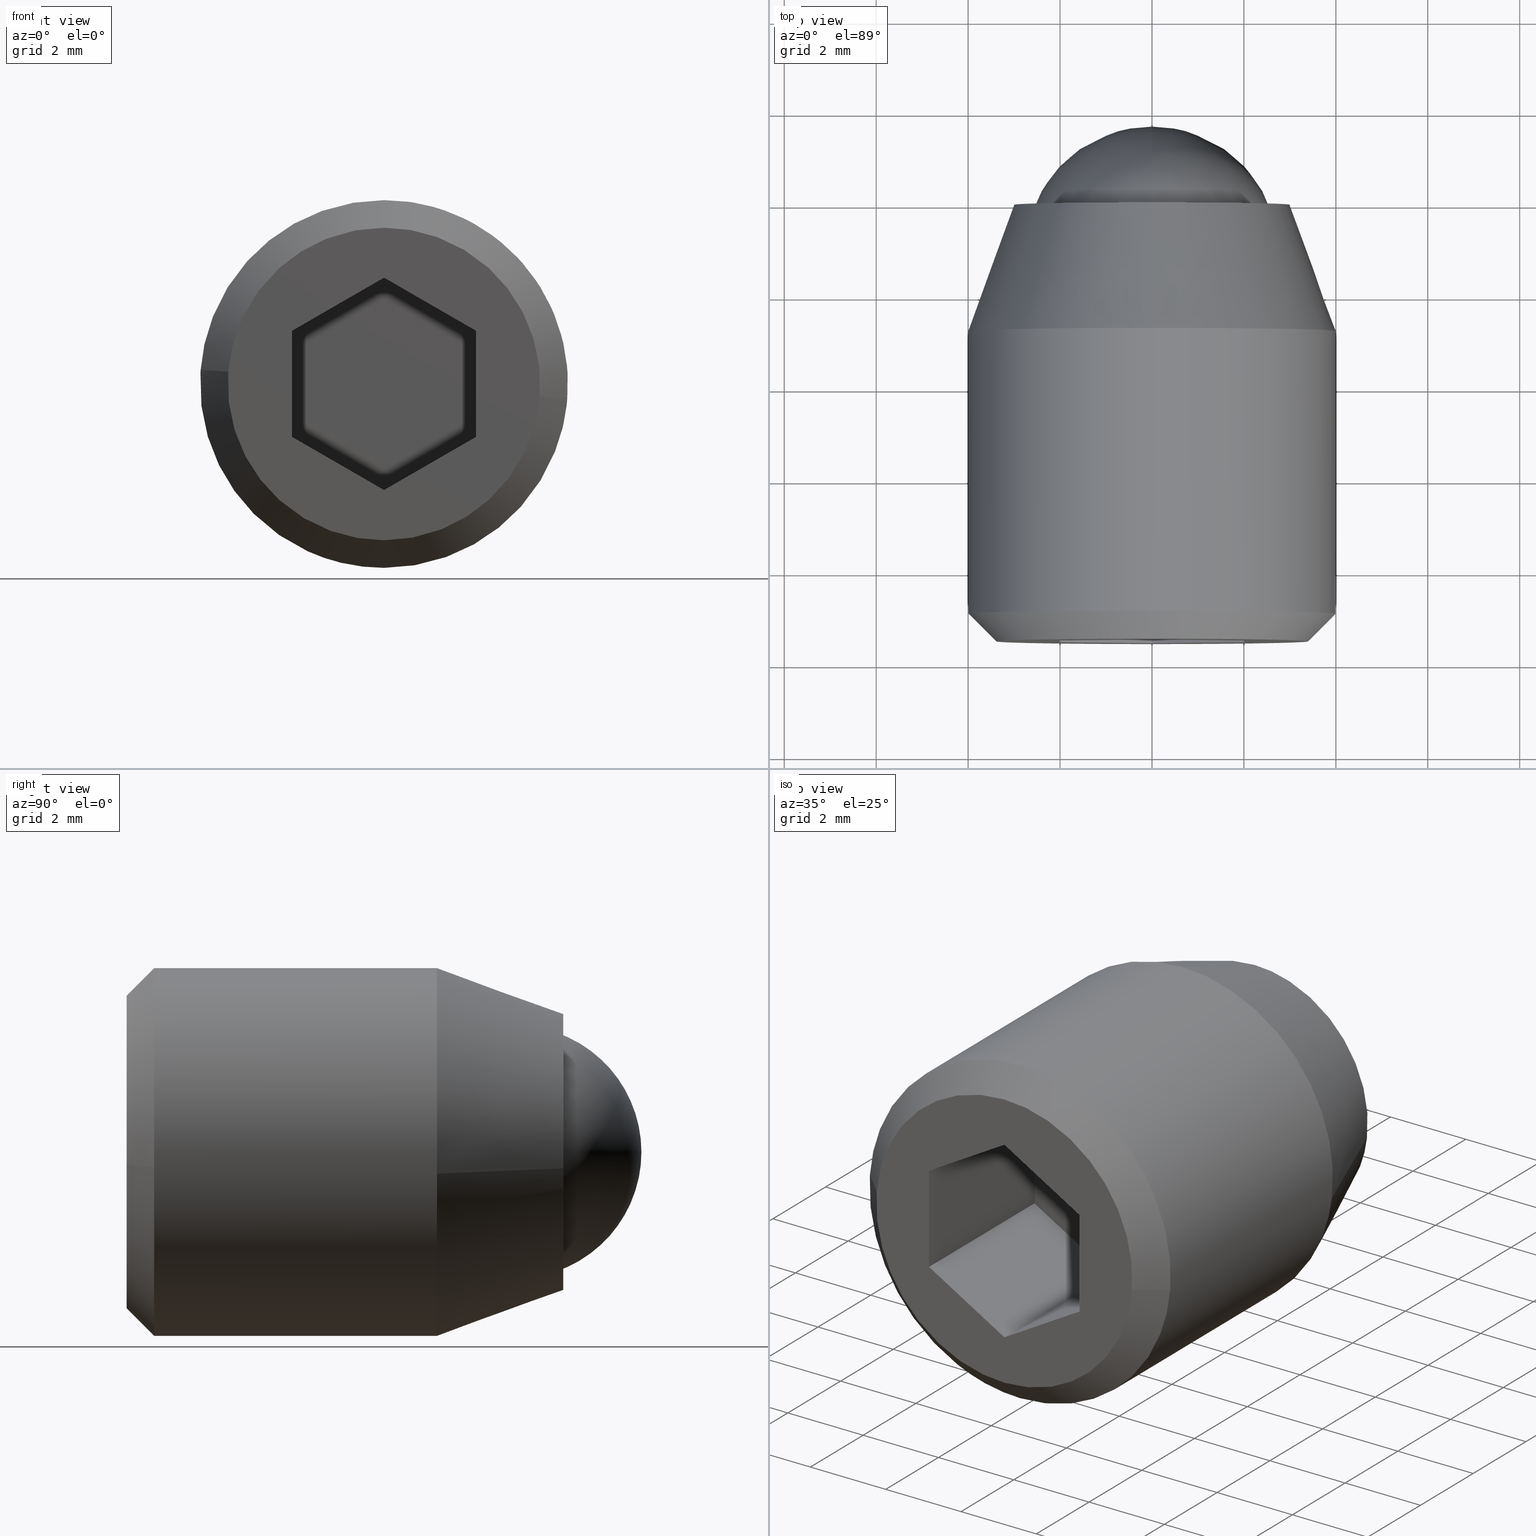
[diagram: canonical four-view strip — front | top / right | iso, engineering-drawing reading convention]
A machine part, canonical four-view strip (front | top / right | iso — engineering-drawing reading convention). The complete STEP part file that produces these views, byte-faithful:
ISO-10303-21;
HEADER;
/****************************************************************
 * Generated by software with PDE/Lib inside                    *
 * PDElib Version 4.4.1-0003, patched  Thursday August 19 11:58 *
 * International Technegroup Inc. (www.iti-oh.com)              *
 ****************************************************************/
FILE_DESCRIPTION((''),'2;1');
FILE_NAME('','2005-07-15T11:42:59',(''),(''),'','CADfix','');
FILE_SCHEMA(('AUTOMOTIVE_DESIGN'));
ENDSEC;
DATA;
#5=APPLICATION_CONTEXT('automotive design');
#6=APPLICATION_PROTOCOL_DEFINITION('Draft International Standard','automotive_design',1998,#5);
#7=PRODUCT_CONTEXT('None',#5,'mechanical');
#8=PRODUCT('body','','None',(#7));
#9=PRODUCT_RELATED_PRODUCT_CATEGORY('part','description',(#8));
#10=PRODUCT_DEFINITION_FORMATION('None','None',#8);
#11=PRODUCT_DEFINITION_CONTEXT('part definition',#5,'design');
#12=PRODUCT_DEFINITION('None','None',#10,#11);
#18=(NAMED_UNIT(*)PLANE_ANGLE_UNIT()SI_UNIT($,.RADIAN.));
#19=DIMENSIONAL_EXPONENTS(0.0,0.0,0.0,0.0,0.0,0.0,0.0);
#20=PLANE_ANGLE_MEASURE_WITH_UNIT(PLANE_ANGLE_MEASURE(0.017453292500000),#18);
#24=(CONVERSION_BASED_UNIT('DEGREE',#20)NAMED_UNIT(#19)PLANE_ANGLE_UNIT());
#28=(NAMED_UNIT(*)SI_UNIT($,.STERADIAN.)SOLID_ANGLE_UNIT());
#32=(LENGTH_UNIT()NAMED_UNIT(*)SI_UNIT(.MILLI.,.METRE.));
#34=UNCERTAINTY_MEASURE_WITH_UNIT(LENGTH_MEASURE(0.001000000000000),#32,'DISTANCE_ACCURACY_VALUE','');
#36=(GEOMETRIC_REPRESENTATION_CONTEXT(3)GLOBAL_UNCERTAINTY_ASSIGNED_CONTEXT((#34))GLOBAL_UNIT_ASSIGNED_CONTEXT((#24,#28,#32))REPRESENTATION_CONTEXT('None','None'));
#37=AXIS2_PLACEMENT_3D('',#38,#39,#40);
#38=CARTESIAN_POINT('',(0.0,0.0,0.0));
#39=DIRECTION('',(0.0,0.0,1.0));
#40=DIRECTION('',(1.0,0.0,0.0));
#41=ADVANCED_BREP_SHAPE_REPRESENTATION('',(#37,#945,#1156),#36);
#42=PRODUCT_DEFINITION_SHAPE('','',#12);
#43=SHAPE_DEFINITION_REPRESENTATION(#42,#41);
#44=CARTESIAN_POINT('',(-2.730776197500084,0.125000000000000,0.324594145306086));
#45=CARTESIAN_POINT('',(-2.740065942483665,0.125000000000000,0.246440503754439));
#46=CARTESIAN_POINT('',(-2.744870695660134,0.125000000000000,0.167883483720857));
#47=CARTESIAN_POINT('',(-2.912754179380990,0.125000000000000,-2.576987211939278));
#48=CARTESIAN_POINT('',(-0.167883483720857,0.125000000000000,-2.744870695660134));
#49=CARTESIAN_POINT('',(2.576987211939278,0.125000000000000,-2.912754179380990));
#50=CARTESIAN_POINT('',(2.744870695660134,0.125000000000000,-0.167883483720857));
#51=CARTESIAN_POINT('',(-2.730776197500084,-5.128125000000002,0.324594145306086));
#52=CARTESIAN_POINT('',(-2.740065942483665,-5.128125000000001,0.246440503754439));
#53=CARTESIAN_POINT('',(-2.744870695660134,-5.128125000000001,0.167883483720857));
#54=CARTESIAN_POINT('',(-2.912754179380990,-5.128125000000001,-2.576987211939278));
#55=CARTESIAN_POINT('',(-0.167883483720857,-5.128125000000001,-2.744870695660134));
#56=CARTESIAN_POINT('',(2.576987211939278,-5.128125000000001,-2.912754179380990));
#57=CARTESIAN_POINT('',(2.744870695660134,-5.128125000000001,-0.167883483720857));
#65=(BOUNDED_SURFACE()B_SPLINE_SURFACE(2,1,((#44,#51),(#45,#52),(#46,#53),(#47,#54),(#48,#55),(#49,#56),(#50,#57)),.UNSPECIFIED.,.F.,.F.,.U.)B_SPLINE_SURFACE_WITH_KNOTS((3,2,2,3),(2,2),(0.0,0.182253967444162,4.738603153548208,9.294952339652255),(0.0,5.253125000000002),.UNSPECIFIED.)GEOMETRIC_REPRESENTATION_ITEM()RATIONAL_B_SPLINE_SURFACE(((0.977505800795127,0.977505800795127),(0.988284271247462,0.988284271247462),(1.0,1.0),(0.707106781186548,0.707106781186548),(1.0,1.0),(0.707106781186548,0.707106781186548),(1.0,1.0)))REPRESENTATION_ITEM('')SURFACE());
#66=CARTESIAN_POINT('',(-2.730776338994065,-4.999999999999998,0.324592954927757));
#67=VERTEX_POINT('',#66);
#68=CARTESIAN_POINT('',(0.0,-5.0,-2.750000000000000));
#69=VERTEX_POINT('',#68);
#70=CARTESIAN_POINT('',(-2.730776338994065,-4.999999999999999,0.324592954927757));
#71=CARTESIAN_POINT('',(-2.750000000000000,-5.0,0.162865727561364));
#72=CARTESIAN_POINT('',(-2.750000000000000,-5.0,0.0));
#73=CARTESIAN_POINT('',(-2.750000000000000,-5.000000000000001,-2.750000000000000));
#74=CARTESIAN_POINT('',(0.0,-5.0,-2.750000000000000));
#82=(BOUNDED_CURVE()B_SPLINE_CURVE(2,(#70,#71,#72,#73,#74),.UNSPECIFIED.,.F.,.U.)B_SPLINE_CURVE_WITH_KNOTS((3,2,3),(0.229562547186204,0.250000000000000,0.500000000000000),.UNSPECIFIED.)CURVE()GEOMETRIC_REPRESENTATION_ITEM()RATIONAL_B_SPLINE_CURVE((0.956026898585249,0.976056034644077,1.0,0.707106781186548,1.0))REPRESENTATION_ITEM(''));
#83=EDGE_CURVE('',#67,#69,#82,.T.);
#84=ORIENTED_EDGE('',*,*,#83,.T.);
#85=CARTESIAN_POINT('',(2.744870905177998,-4.999999999999996,-0.167880058063904));
#86=VERTEX_POINT('',#85);
#87=CARTESIAN_POINT('',(0.0,-5.0,-2.750000000000000));
#88=CARTESIAN_POINT('',(2.586944918583669,-5.0,-2.750000000000001));
#89=CARTESIAN_POINT('',(2.744870905177998,-4.999999999999996,-0.167880058063904));
#97=(BOUNDED_CURVE()B_SPLINE_CURVE(2,(#87,#88,#89),.UNSPECIFIED.,.F.,.U.)B_SPLINE_CURVE_WITH_KNOTS((3,3),(0.500000000000000,0.739333177584063),.UNSPECIFIED.)CURVE()GEOMETRIC_REPRESENTATION_ITEM()RATIONAL_B_SPLINE_CURVE((1.0,0.719603740994209,0.976072503192737))REPRESENTATION_ITEM(''));
#98=EDGE_CURVE('',#69,#86,#97,.T.);
#99=ORIENTED_EDGE('',*,*,#98,.T.);
#100=CARTESIAN_POINT('',(2.744870902593660,-1.110223E-016,-0.167880100319174));
#101=VERTEX_POINT('',#100);
#102=CARTESIAN_POINT('',(2.744870902593660,-1.110223E-016,-0.167880100319174));
#103=CARTESIAN_POINT('',(2.744870905177998,-4.999999999999996,-0.167880058063904));
#104=QUASI_UNIFORM_CURVE('',1,(#102,#103),.UNSPECIFIED.,.F.,.U.);
#105=EDGE_CURVE('',#101,#86,#104,.T.);
#106=ORIENTED_EDGE('',*,*,#105,.F.);
#107=CARTESIAN_POINT('',(0.0,0.0,-2.750000000000000));
#108=VERTEX_POINT('',#107);
#109=CARTESIAN_POINT('',(0.0,0.0,-2.750000000000000));
#110=CARTESIAN_POINT('',(2.586944878685141,0.0,-2.750000000000000));
#111=CARTESIAN_POINT('',(2.744870902593660,-1.110223E-016,-0.167880100319173));
#119=(BOUNDED_CURVE()B_SPLINE_CURVE(2,(#109,#110,#111),.UNSPECIFIED.,.F.,.U.)B_SPLINE_CURVE_WITH_KNOTS((3,3),(0.500000000000000,0.739333174927831),.UNSPECIFIED.)CURVE()GEOMETRIC_REPRESENTATION_ITEM()RATIONAL_B_SPLINE_CURVE((1.0,0.719603744106178,0.976072497499916))REPRESENTATION_ITEM(''));
#120=EDGE_CURVE('',#108,#101,#119,.T.);
#121=ORIENTED_EDGE('',*,*,#120,.F.);
#122=CARTESIAN_POINT('',(-2.730776337250088,-1.135771E-016,0.324592969599759));
#123=VERTEX_POINT('',#122);
#124=CARTESIAN_POINT('',(-2.730776337250088,-1.135771E-016,0.324592969599759));
#125=CARTESIAN_POINT('',(-2.750000000000000,0.0,0.162865734974919));
#126=CARTESIAN_POINT('',(-2.750000000000000,0.0,0.0));
#127=CARTESIAN_POINT('',(-2.750000000000000,0.0,-2.750000000000000));
#128=CARTESIAN_POINT('',(0.0,0.0,-2.750000000000000));
#136=(BOUNDED_CURVE()B_SPLINE_CURVE(2,(#124,#125,#126,#127,#128),.UNSPECIFIED.,.F.,.U.)B_SPLINE_CURVE_WITH_KNOTS((3,2,3),(0.229562546278178,0.250000000000000,0.500000000000000),.UNSPECIFIED.)CURVE()GEOMETRIC_REPRESENTATION_ITEM()RATIONAL_B_SPLINE_CURVE((0.956026896805479,0.976056033580258,1.0,0.707106781186548,1.0))REPRESENTATION_ITEM(''));
#137=EDGE_CURVE('',#123,#108,#136,.T.);
#138=ORIENTED_EDGE('',*,*,#137,.F.);
#139=CARTESIAN_POINT('',(-2.730776337250088,-1.135771E-016,0.324592969599759));
#140=CARTESIAN_POINT('',(-2.730776338994065,-4.999999999999998,0.324592954927757));
#141=QUASI_UNIFORM_CURVE('',1,(#139,#140),.UNSPECIFIED.,.F.,.U.);
#142=EDGE_CURVE('',#123,#67,#141,.T.);
#143=ORIENTED_EDGE('',*,*,#142,.T.);
#144=EDGE_LOOP('',(#84,#99,#106,#121,#138,#143));
#145=FACE_OUTER_BOUND('',#144,.T.);
#146=ADVANCED_FACE('',(#145),#65,.F.);
#147=CARTESIAN_POINT('',(2.744870695660134,0.125000000000000,-0.167883483720857));
#148=CARTESIAN_POINT('',(2.912754179380990,0.125000000000000,2.576987211939278));
#149=CARTESIAN_POINT('',(0.167883483720857,0.125000000000000,2.744870695660134));
#150=CARTESIAN_POINT('',(-2.424244599808628,0.125000000000000,2.903412041014450));
#151=CARTESIAN_POINT('',(-2.730776197500084,0.125000000000000,0.324594145306086));
#152=CARTESIAN_POINT('',(2.744870695660134,-5.128125000000001,-0.167883483720857));
#153=CARTESIAN_POINT('',(2.912754179380990,-5.128125000000001,2.576987211939278));
#154=CARTESIAN_POINT('',(0.167883483720857,-5.128125000000001,2.744870695660134));
#155=CARTESIAN_POINT('',(-2.424244599808628,-5.128125000000000,2.903412041014450));
#156=CARTESIAN_POINT('',(-2.730776197500084,-5.128125000000002,0.324594145306086));
#164=(BOUNDED_SURFACE()B_SPLINE_SURFACE(2,1,((#147,#152),(#148,#153),(#149,#154),(#150,#155),(#151,#156)),.UNSPECIFIED.,.F.,.F.,.U.)B_SPLINE_SURFACE_WITH_KNOTS((3,2,3),(2,2),(0.0,4.556349186104046,8.930444404763930),(0.0,5.253125000000002),.UNSPECIFIED.)GEOMETRIC_REPRESENTATION_ITEM()RATIONAL_B_SPLINE_SURFACE(((1.0,1.0),(0.707106781186548,0.707106781186548),(1.0,1.0),(0.718822509939086,0.718822509939086),(0.977505800795127,0.977505800795127)))REPRESENTATION_ITEM('')SURFACE());
#165=CARTESIAN_POINT('',(0.0,-5.0,2.750000000000000));
#166=VERTEX_POINT('',#165);
#167=CARTESIAN_POINT('',(0.0,-5.0,2.750000000000000));
#168=CARTESIAN_POINT('',(-2.442481018568121,-4.999999999999999,2.750000000000000));
#169=CARTESIAN_POINT('',(-2.730776338994065,-4.999999999999999,0.324592954927757));
#177=(BOUNDED_CURVE()B_SPLINE_CURVE(2,(#167,#168,#169),.UNSPECIFIED.,.F.,.U.)B_SPLINE_CURVE_WITH_KNOTS((3,3),(0.0,0.229562547186204),.UNSPECIFIED.)CURVE()GEOMETRIC_REPRESENTATION_ITEM()RATIONAL_B_SPLINE_CURVE((1.0,0.731050746542471,0.956026898585249))REPRESENTATION_ITEM(''));
#178=EDGE_CURVE('',#166,#67,#177,.T.);
#179=ORIENTED_EDGE('',*,*,#178,.T.);
#180=ORIENTED_EDGE('',*,*,#142,.F.);
#181=CARTESIAN_POINT('',(0.0,0.0,2.750000000000000));
#182=VERTEX_POINT('',#181);
#183=CARTESIAN_POINT('',(0.0,0.0,2.750000000000000));
#184=CARTESIAN_POINT('',(-2.442481005352701,0.0,2.750000000000001));
#185=CARTESIAN_POINT('',(-2.730776337250088,-1.135771E-016,0.324592969599759));
#193=(BOUNDED_CURVE()B_SPLINE_CURVE(2,(#183,#184,#185),.UNSPECIFIED.,.F.,.U.)B_SPLINE_CURVE_WITH_KNOTS((3,3),(0.0,0.229562546278178),.UNSPECIFIED.)CURVE()GEOMETRIC_REPRESENTATION_ITEM()RATIONAL_B_SPLINE_CURVE((1.0,0.731050747606289,0.956026896805479))REPRESENTATION_ITEM(''));
#194=EDGE_CURVE('',#182,#123,#193,.T.);
#195=ORIENTED_EDGE('',*,*,#194,.F.);
#196=CARTESIAN_POINT('',(2.744870902593660,-1.110223E-016,-0.167880100319173));
#197=CARTESIAN_POINT('',(2.750000000000000,0.0,-0.084018402627073));
#198=CARTESIAN_POINT('',(2.750000000000000,0.0,0.0));
#199=CARTESIAN_POINT('',(2.750000000000000,0.0,2.750000000000000));
#200=CARTESIAN_POINT('',(0.0,0.0,2.750000000000000));
#208=(BOUNDED_CURVE()B_SPLINE_CURVE(2,(#196,#197,#198,#199,#200),.UNSPECIFIED.,.F.,.U.)B_SPLINE_CURVE_WITH_KNOTS((3,2,3),(0.739333174927831,0.750000000000000,1.0),.UNSPECIFIED.)CURVE()GEOMETRIC_REPRESENTATION_ITEM()RATIONAL_B_SPLINE_CURVE((0.976072497499916,0.987503037080369,1.0,0.707106781186548,1.0))REPRESENTATION_ITEM(''));
#209=EDGE_CURVE('',#101,#182,#208,.T.);
#210=ORIENTED_EDGE('',*,*,#209,.F.);
#211=ORIENTED_EDGE('',*,*,#105,.T.);
#212=CARTESIAN_POINT('',(2.744870905177998,-4.999999999999996,-0.167880058063904));
#213=CARTESIAN_POINT('',(2.750000000000000,-5.0,-0.084018381440203));
#214=CARTESIAN_POINT('',(2.750000000000000,-5.0,0.0));
#215=CARTESIAN_POINT('',(2.750000000000000,-5.000000000000001,2.750000000000000));
#216=CARTESIAN_POINT('',(0.0,-5.0,2.750000000000000));
#224=(BOUNDED_CURVE()B_SPLINE_CURVE(2,(#212,#213,#214,#215,#216),.UNSPECIFIED.,.F.,.U.)B_SPLINE_CURVE_WITH_KNOTS((3,2,3),(0.739333177584063,0.750000000000000,1.0),.UNSPECIFIED.)CURVE()GEOMETRIC_REPRESENTATION_ITEM()RATIONAL_B_SPLINE_CURVE((0.976072503192737,0.987503040192339,1.0,0.707106781186548,1.0))REPRESENTATION_ITEM(''));
#225=EDGE_CURVE('',#86,#166,#224,.T.);
#226=ORIENTED_EDGE('',*,*,#225,.T.);
#227=EDGE_LOOP('',(#179,#180,#195,#210,#211,#226));
#228=FACE_OUTER_BOUND('',#227,.T.);
#229=ADVANCED_FACE('',(#228),#164,.F.);
#230=CARTESIAN_POINT('',(-0.937294455940053,-2.593663924999999,-3.888634606499309));
#231=CARTESIAN_POINT('',(-0.595313188665042,-2.593663924999999,-3.971063833795824));
#232=CARTESIAN_POINT('',(-0.244194158139428,-2.593663924999999,-3.992539193687468));
#233=CARTESIAN_POINT('',(3.748345035548039,-2.593663925000000,-4.236733351826896));
#234=CARTESIAN_POINT('',(3.992539193687467,-2.593663924999999,-0.244194158139429));
#235=CARTESIAN_POINT('',(4.236733351826894,-2.593663925000000,3.748345035548039));
#236=CARTESIAN_POINT('',(0.244194158139428,-2.593663924999999,3.992539193687466));
#237=CARTESIAN_POINT('',(-3.748345035548039,-2.593663925000000,4.236733351826894));
#238=CARTESIAN_POINT('',(-3.992539193687467,-2.593663924999999,0.244194158139427));
#239=CARTESIAN_POINT('',(-0.937294455940053,-9.057658401875003,-3.888634606499309));
#240=CARTESIAN_POINT('',(-0.595313188665042,-9.057658401875003,-3.971063833795824));
#241=CARTESIAN_POINT('',(-0.244194158139428,-9.057658401875003,-3.992539193687468));
#242=CARTESIAN_POINT('',(3.748345035548039,-9.057658401875004,-4.236733351826896));
#243=CARTESIAN_POINT('',(3.992539193687467,-9.057658401875003,-0.244194158139429));
#244=CARTESIAN_POINT('',(4.236733351826894,-9.057658401875004,3.748345035548039));
#245=CARTESIAN_POINT('',(0.244194158139428,-9.057658401875003,3.992539193687466));
#246=CARTESIAN_POINT('',(-3.748345035548039,-9.057658401875004,4.236733351826894));
#247=CARTESIAN_POINT('',(-3.992539193687467,-9.057658401875003,0.244194158139427));
#255=(BOUNDED_SURFACE()B_SPLINE_SURFACE(2,1,((#230,#239),(#231,#240),(#232,#241),(#233,#242),(#234,#243),(#235,#244),(#236,#245),(#237,#246),(#238,#247)),.UNSPECIFIED.,.F.,.F.,.U.)B_SPLINE_SURFACE_WITH_KNOTS((3,2,2,2,3),(2,2),(0.0,0.795290039756342,7.422707037725862,14.050124035695379,20.677541033664902),(0.0,6.463994476875004),.UNSPECIFIED.)GEOMETRIC_REPRESENTATION_ITEM()RATIONAL_B_SPLINE_SURFACE(((0.938140952186599,0.938140952186599),(0.964852813742386,0.964852813742386),(1.0,1.0),(0.707106781186548,0.707106781186548),(1.0,1.0),(0.707106781186548,0.707106781186548),(1.0,1.0),(0.707106781186548,0.707106781186548),(1.0,1.0)))REPRESENTATION_ITEM('')SURFACE());
#256=CARTESIAN_POINT('',(-0.937293227097118,-8.899999999999999,-3.888634902692239));
#257=VERTEX_POINT('',#256);
#258=CARTESIAN_POINT('',(0.0,-8.900000000000000,-4.000000000000001));
#259=VERTEX_POINT('',#258);
#260=CARTESIAN_POINT('',(-0.937293227097118,-8.899999999999997,-3.888634902692239));
#261=CARTESIAN_POINT('',(-0.475262571361877,-8.900000000000000,-4.000000000000001));
#262=CARTESIAN_POINT('',(0.0,-8.900000000000000,-4.000000000000001));
#270=(BOUNDED_CURVE()B_SPLINE_CURVE(2,(#260,#261,#262),.UNSPECIFIED.,.F.,.U.)B_SPLINE_CURVE_WITH_KNOTS((3,3),(0.959962761347850,1.0),.UNSPECIFIED.)CURVE()GEOMETRIC_REPRESENTATION_ITEM()RATIONAL_B_SPLINE_CURVE((0.921210981979179,0.953093457195077,1.0))REPRESENTATION_ITEM(''));
#271=EDGE_CURVE('',#257,#259,#270,.T.);
#272=ORIENTED_EDGE('',*,*,#271,.F.);
#273=CARTESIAN_POINT('',(-0.937293242248604,-2.747477000000000,-3.888634899040221));
#274=VERTEX_POINT('',#273);
#275=CARTESIAN_POINT('',(-0.937293242248604,-2.747477000000000,-3.888634899040221));
#276=CARTESIAN_POINT('',(-0.937293227097118,-8.899999999999999,-3.888634902692239));
#277=QUASI_UNIFORM_CURVE('',1,(#275,#276),.UNSPECIFIED.,.F.,.U.);
#278=EDGE_CURVE('',#274,#257,#277,.T.);
#279=ORIENTED_EDGE('',*,*,#278,.F.);
#280=CARTESIAN_POINT('',(0.0,-2.747477000000000,-4.000000000000001));
#281=VERTEX_POINT('',#280);
#282=CARTESIAN_POINT('',(-0.937293242248604,-2.747477000000000,-3.888634899040221));
#283=CARTESIAN_POINT('',(-0.475262579264590,-2.747477000000000,-4.000000000000001));
#284=CARTESIAN_POINT('',(0.0,-2.747477000000000,-4.000000000000001));
#292=(BOUNDED_CURVE()B_SPLINE_CURVE(2,(#282,#283,#284),.UNSPECIFIED.,.F.,.U.)B_SPLINE_CURVE_WITH_KNOTS((3,3),(0.959962760713334,1.0),.UNSPECIFIED.)CURVE()GEOMETRIC_REPRESENTATION_ITEM()RATIONAL_B_SPLINE_CURVE((0.921210980968623,0.953093456451696,1.0))REPRESENTATION_ITEM(''));
#293=EDGE_CURVE('',#274,#281,#292,.T.);
#294=ORIENTED_EDGE('',*,*,#293,.T.);
#295=CARTESIAN_POINT('',(3.972037385521139,-2.747473917103442,-0.472133488910133));
#296=VERTEX_POINT('',#295);
#297=CARTESIAN_POINT('',(0.0,-2.747477000000000,-4.000000000000001));
#298=CARTESIAN_POINT('',(3.552700534632364,-2.747475458551722,-3.999999933778294));
#299=CARTESIAN_POINT('',(3.972037385521139,-2.747473917103442,-0.472133488910133));
#307=(BOUNDED_CURVE()B_SPLINE_CURVE(2,(#297,#298,#299),.UNSPECIFIED.,.F.,.U.)B_SPLINE_CURVE_WITH_KNOTS((3,3),(0.0,0.229562614659823),.UNSPECIFIED.)CURVE()GEOMETRIC_REPRESENTATION_ITEM()RATIONAL_B_SPLINE_CURVE((1.0,0.731050667492209,0.956027030836438))REPRESENTATION_ITEM(''));
#308=EDGE_CURVE('',#281,#296,#307,.T.);
#309=ORIENTED_EDGE('',*,*,#308,.T.);
#310=CARTESIAN_POINT('',(0.0,-2.747477000000000,3.999999999999999));
#311=VERTEX_POINT('',#310);
#312=CARTESIAN_POINT('',(3.972037385521139,-2.747473917103442,-0.472133488910133));
#313=CARTESIAN_POINT('',(3.999998915064733,-2.747473998185204,-0.236894673476042));
#314=CARTESIAN_POINT('',(3.999998948059451,-2.747474089475475,0.000000125038188));
#315=CARTESIAN_POINT('',(3.999999505179631,-2.747475630923755,4.000000058816482));
#316=CARTESIAN_POINT('',(0.0,-2.747477000000000,3.999999999999999));
#324=(BOUNDED_CURVE()B_SPLINE_CURVE(2,(#312,#313,#314,#315,#316),.UNSPECIFIED.,.F.,.U.)B_SPLINE_CURVE_WITH_KNOTS((3,2,3),(0.229562614659823,0.250000000000000,0.500000000000000),.UNSPECIFIED.)CURVE()GEOMETRIC_REPRESENTATION_ITEM()RATIONAL_B_SPLINE_CURVE((0.956027030836438,0.976056113694338,1.0,0.707106781186548,1.0))REPRESENTATION_ITEM(''));
#325=EDGE_CURVE('',#296,#311,#324,.T.);
#326=ORIENTED_EDGE('',*,*,#325,.T.);
#327=CARTESIAN_POINT('',(-3.992538964374100,-2.747475426346606,0.244193216148658));
#328=VERTEX_POINT('',#327);
#329=CARTESIAN_POINT('',(0.0,-2.747477000000000,3.999999999999999));
#330=CARTESIAN_POINT('',(-3.762824997636320,-2.747476213173302,3.999999991258105));
#331=CARTESIAN_POINT('',(-3.992538964374101,-2.747475426346606,0.244193216148658));
#339=(BOUNDED_CURVE()B_SPLINE_CURVE(2,(#329,#330,#331),.UNSPECIFIED.,.F.,.U.)B_SPLINE_CURVE_WITH_KNOTS((3,3),(0.500000000000000,0.739333002196671),.UNSPECIFIED.)CURVE()GEOMETRIC_REPRESENTATION_ITEM()RATIONAL_B_SPLINE_CURVE((1.0,0.719603946473320,0.976072127303751))REPRESENTATION_ITEM(''));
#340=EDGE_CURVE('',#311,#328,#339,.T.);
#341=ORIENTED_EDGE('',*,*,#340,.T.);
#342=CARTESIAN_POINT('',(-3.992539213832878,-8.899999999999999,0.244193828764437));
#343=VERTEX_POINT('',#342);
#344=CARTESIAN_POINT('',(-3.992538964374100,-2.747475426346606,0.244193216148658));
#345=CARTESIAN_POINT('',(-3.992539213832878,-8.899999999999999,0.244193828764437));
#346=QUASI_UNIFORM_CURVE('',1,(#344,#345),.UNSPECIFIED.,.F.,.U.);
#347=EDGE_CURVE('',#328,#343,#346,.T.);
#348=ORIENTED_EDGE('',*,*,#347,.T.);
#349=CARTESIAN_POINT('',(-3.987669081144080,-8.900000270182057,0.313836163995019));
#350=VERTEX_POINT('',#349);
#351=CARTESIAN_POINT('',(-3.987669081144081,-8.900000270182057,0.313836163995019));
#352=CARTESIAN_POINT('',(-3.990408181555453,-8.900000000000004,0.279035992859209));
#353=CARTESIAN_POINT('',(-3.992539213832878,-8.899999999999999,0.244193828764437));
#361=(BOUNDED_CURVE()B_SPLINE_CURVE(2,(#351,#352,#353),.UNSPECIFIED.,.F.,.U.)B_SPLINE_CURVE_WITH_KNOTS((3,3),(0.736331317632034,0.739332990711369),.UNSPECIFIED.)CURVE()GEOMETRIC_REPRESENTATION_ITEM()RATIONAL_B_SPLINE_CURVE((0.969723391647992,0.972855523488422,0.976072102688554))REPRESENTATION_ITEM(''));
#362=EDGE_CURVE('',#350,#343,#361,.T.);
#363=ORIENTED_EDGE('',*,*,#362,.F.);
#364=CARTESIAN_POINT('',(0.0,-8.900000000000000,3.999999999999999));
#365=VERTEX_POINT('',#364);
#366=CARTESIAN_POINT('',(0.0,-8.900000000000000,3.999999999999999));
#367=CARTESIAN_POINT('',(-3.697562334434481,-8.900000000000002,4.000000000000000));
#368=CARTESIAN_POINT('',(-3.987669081144081,-8.900000270182057,0.313836163995019));
#376=(BOUNDED_CURVE()B_SPLINE_CURVE(2,(#366,#367,#368),.UNSPECIFIED.,.F.,.U.)B_SPLINE_CURVE_WITH_KNOTS((3,3),(0.500000000000000,0.736331317632035),.UNSPECIFIED.)CURVE()GEOMETRIC_REPRESENTATION_ITEM()RATIONAL_B_SPLINE_CURVE((1.0,0.723120638689316,0.969723391647993))REPRESENTATION_ITEM(''));
#377=EDGE_CURVE('',#365,#350,#376,.T.);
#378=ORIENTED_EDGE('',*,*,#377,.F.);
#379=CARTESIAN_POINT('',(3.987669081144081,-8.900000270182055,-0.313836163995021));
#380=VERTEX_POINT('',#379);
#381=CARTESIAN_POINT('',(3.987669081144081,-8.900000270182055,-0.313836163995021));
#382=CARTESIAN_POINT('',(4.000000000000001,-8.899999999999999,-0.157160229395012));
#383=CARTESIAN_POINT('',(4.0,-8.900000000000000,-6.735335E-016));
#384=CARTESIAN_POINT('',(4.000000000000000,-8.900000000000000,4.000000000000000));
#385=CARTESIAN_POINT('',(0.0,-8.900000000000000,3.999999999999999));
#393=(BOUNDED_CURVE()B_SPLINE_CURVE(2,(#381,#382,#383,#384,#385),.UNSPECIFIED.,.F.,.U.)B_SPLINE_CURVE_WITH_KNOTS((3,2,3),(0.236331317632034,0.250000000000000,0.500000000000000),.UNSPECIFIED.)CURVE()GEOMETRIC_REPRESENTATION_ITEM()RATIONAL_B_SPLINE_CURVE((0.969723391647992,0.983986142497231,1.0,0.707106781186548,1.0))REPRESENTATION_ITEM(''));
#394=EDGE_CURVE('',#380,#365,#393,.T.);
#395=ORIENTED_EDGE('',*,*,#394,.F.);
#396=CARTESIAN_POINT('',(0.0,-8.900000000000000,-4.000000000000001));
#397=CARTESIAN_POINT('',(3.697562334434470,-8.900000000000000,-4.000000000000001));
#398=CARTESIAN_POINT('',(3.987669081144081,-8.900000270182055,-0.313836163995021));
#406=(BOUNDED_CURVE()B_SPLINE_CURVE(2,(#396,#397,#398),.UNSPECIFIED.,.F.,.U.)B_SPLINE_CURVE_WITH_KNOTS((3,3),(0.0,0.236331317632034),.UNSPECIFIED.)CURVE()GEOMETRIC_REPRESENTATION_ITEM()RATIONAL_B_SPLINE_CURVE((1.0,0.723120638689316,0.969723391647992))REPRESENTATION_ITEM(''));
#407=EDGE_CURVE('',#259,#380,#406,.T.);
#408=ORIENTED_EDGE('',*,*,#407,.F.);
#409=EDGE_LOOP('',(#272,#279,#294,#309,#326,#341,#348,#363,#378,#395,#408));
#410=FACE_OUTER_BOUND('',#409,.T.);
#411=ADVANCED_FACE('',(#410),#255,.T.);
#412=CARTESIAN_POINT('',(-3.992539193687467,-2.593663924999999,0.244194158139427));
#413=CARTESIAN_POINT('',(-4.197254547722104,-2.593663925000000,-3.102872294065471));
#414=CARTESIAN_POINT('',(-0.937294455940053,-2.593663924999999,-3.888634606499309));
#415=CARTESIAN_POINT('',(-3.992539193687467,-9.057658401875003,0.244194158139427));
#416=CARTESIAN_POINT('',(-4.197254547722104,-9.057658401875003,-3.102872294065471));
#417=CARTESIAN_POINT('',(-0.937294455940053,-9.057658401875003,-3.888634606499309));
#425=(BOUNDED_SURFACE()B_SPLINE_SURFACE(2,1,((#412,#415),(#413,#416),(#414,#417)),.UNSPECIFIED.,.F.,.F.,.U.)B_SPLINE_SURFACE_WITH_KNOTS((3,3),(2,2),(0.0,5.817753329419235),(0.0,6.463994476875004),.UNSPECIFIED.)GEOMETRIC_REPRESENTATION_ITEM()RATIONAL_B_SPLINE_SURFACE(((1.0,1.0),(0.742253967444162,0.742253967444162),(0.938140952186599,0.938140952186599)))REPRESENTATION_ITEM('')SURFACE());
#426=CARTESIAN_POINT('',(-3.992539213832878,-8.899999999999999,0.244193828764437));
#427=CARTESIAN_POINT('',(-4.0,-8.900000000000000,0.122210722895832));
#428=CARTESIAN_POINT('',(-4.0,-8.900000000000000,-6.735335E-016));
#429=CARTESIAN_POINT('',(-4.0,-8.900000000000000,-3.150418436847609));
#430=CARTESIAN_POINT('',(-0.937293227097118,-8.899999999999997,-3.888634902692239));
#438=(BOUNDED_CURVE()B_SPLINE_CURVE(2,(#426,#427,#428,#429,#430),.UNSPECIFIED.,.F.,.U.)B_SPLINE_CURVE_WITH_KNOTS((3,2,3),(0.739332990711369,0.750000000000000,0.959962761347850),.UNSPECIFIED.)CURVE()GEOMETRIC_REPRESENTATION_ITEM()RATIONAL_B_SPLINE_CURVE((0.976072102688554,0.987502821257359,1.0,0.754013323991470,0.921210981979179))REPRESENTATION_ITEM(''));
#439=EDGE_CURVE('',#343,#257,#438,.T.);
#440=ORIENTED_EDGE('',*,*,#439,.F.);
#441=ORIENTED_EDGE('',*,*,#347,.F.);
#442=CARTESIAN_POINT('',(-3.992538964374101,-2.747475426346606,0.244193216148658));
#443=CARTESIAN_POINT('',(-3.999999719350476,-2.747475455022222,0.122210572479565));
#444=CARTESIAN_POINT('',(-3.999999724816354,-2.747475485111932,-0.000000016830882));
#445=CARTESIAN_POINT('',(-3.999999865719081,-2.747476260782650,-3.150418432433769));
#446=CARTESIAN_POINT('',(-0.937293242248604,-2.747477000000000,-3.888634899040221));
#454=(BOUNDED_CURVE()B_SPLINE_CURVE(2,(#442,#443,#444,#445,#446),.UNSPECIFIED.,.F.,.U.)B_SPLINE_CURVE_WITH_KNOTS((3,2,3),(0.739333002196671,0.750000000000000,0.959962760713334),.UNSPECIFIED.)CURVE()GEOMETRIC_REPRESENTATION_ITEM()RATIONAL_B_SPLINE_CURVE((0.976072127303751,0.987502834713228,1.0,0.754013324734851,0.921210980968623))REPRESENTATION_ITEM(''));
#455=EDGE_CURVE('',#328,#274,#454,.T.);
#456=ORIENTED_EDGE('',*,*,#455,.T.);
#457=ORIENTED_EDGE('',*,*,#278,.T.);
#458=EDGE_LOOP('',(#440,#441,#456,#457));
#459=FACE_OUTER_BOUND('',#458,.T.);
#460=ADVANCED_FACE('',(#459),#425,.T.);
#461=CARTESIAN_POINT('',(2.954203340931907,0.068686925000000,-0.351151848103857));
#462=CARTESIAN_POINT('',(2.964253155959602,0.068686925000000,-0.266603817697984));
#463=CARTESIAN_POINT('',(2.969451025305053,0.068686925000000,-0.181619405116200));
#464=CARTESIAN_POINT('',(3.151070430421253,0.068686925000000,2.787831620188853));
#465=CARTESIAN_POINT('',(0.181619405116200,0.068686925000000,2.969451025305053));
#466=CARTESIAN_POINT('',(-2.787831620188853,0.068686925000000,3.151070430421253));
#467=CARTESIAN_POINT('',(-2.969451025305053,0.068686925000000,0.181619405116199));
#468=CARTESIAN_POINT('',(3.997483974567732,-2.817881098125001,-0.475161565890114));
#469=CARTESIAN_POINT('',(4.011082894440293,-2.817881098125001,-0.360755291973259));
#470=CARTESIAN_POINT('',(4.018116397897026,-2.817881098125001,-0.245758526965009));
#471=CARTESIAN_POINT('',(4.263874924862034,-2.817881098125000,3.772357870932017));
#472=CARTESIAN_POINT('',(0.245758526965009,-2.817881098125001,4.018116397897025));
#473=CARTESIAN_POINT('',(-3.772357870932017,-2.817881098125000,4.263874924862034));
#474=CARTESIAN_POINT('',(-4.018116397897026,-2.817881098125001,0.245758526965008));
#482=(BOUNDED_SURFACE()B_SPLINE_SURFACE(2,1,((#461,#468),(#462,#469),(#463,#470),(#464,#471),(#465,#472),(#466,#473),(#467,#474)),.UNSPECIFIED.,.F.,.F.,.U.)B_SPLINE_SURFACE_WITH_KNOTS((3,2,2,3),(2,2),(0.0,0.266794955524511,6.936668843637269,13.606542731750030),(0.0,3.071821583808665),.UNSPECIFIED.)GEOMETRIC_REPRESENTATION_ITEM()RATIONAL_B_SPLINE_SURFACE(((0.977505800795127,0.977505800795127),(0.988284271247462,0.988284271247462),(1.0,1.0),(0.707106781186548,0.707106781186548),(1.0,1.0),(0.707106781186548,0.707106781186548),(1.0,1.0)))REPRESENTATION_ITEM('')SURFACE());
#483=ORIENTED_EDGE('',*,*,#325,.F.);
#484=CARTESIAN_POINT('',(2.979028274472389,0.000001302136473,-0.354101251421632));
#485=VERTEX_POINT('',#484);
#486=CARTESIAN_POINT('',(2.979028274472389,0.000001302136473,-0.354101251421632));
#487=CARTESIAN_POINT('',(3.972037385521139,-2.747473917103442,-0.472133488910133));
#488=QUASI_UNIFORM_CURVE('',1,(#486,#487),.UNSPECIFIED.,.F.,.U.);
#489=EDGE_CURVE('',#485,#296,#488,.T.);
#490=ORIENTED_EDGE('',*,*,#489,.F.);
#491=CARTESIAN_POINT('',(0.0,0.0,2.999999999999999));
#492=VERTEX_POINT('',#491);
#493=CARTESIAN_POINT('',(2.979028274472389,0.000001302136473,-0.354101251421632));
#494=CARTESIAN_POINT('',(2.999999541751461,0.000001267889521,-0.177671598799914));
#495=CARTESIAN_POINT('',(2.999999555687619,0.000001229330731,0.000000052813049));
#496=CARTESIAN_POINT('',(2.999999791000763,0.000000578262495,3.000000024842628));
#497=CARTESIAN_POINT('',(0.0,0.0,2.999999999999999));
#505=(BOUNDED_CURVE()B_SPLINE_CURVE(2,(#493,#494,#495,#496,#497),.UNSPECIFIED.,.F.,.U.)B_SPLINE_CURVE_WITH_KNOTS((3,2,3),(0.229562552746596,0.250000000000000,0.500000000000000),.UNSPECIFIED.)CURVE()GEOMETRIC_REPRESENTATION_ITEM()RATIONAL_B_SPLINE_CURVE((0.956026909483853,0.976056041158482,1.0,0.707106781186548,1.0))REPRESENTATION_ITEM(''));
#506=EDGE_CURVE('',#485,#492,#505,.T.);
#507=ORIENTED_EDGE('',*,*,#506,.T.);
#508=CARTESIAN_POINT('',(-2.994404395265616,-4.958464E-013,0.183145618607279));
#509=VERTEX_POINT('',#508);
#510=CARTESIAN_POINT('',(0.0,0.0,2.999999999999999));
#511=CARTESIAN_POINT('',(-2.822118200711971,0.0,2.999999999999999));
#512=CARTESIAN_POINT('',(-2.994404395265616,-4.958464E-013,0.183145618607279));
#520=(BOUNDED_CURVE()B_SPLINE_CURVE(2,(#510,#511,#512),.UNSPECIFIED.,.F.,.U.)B_SPLINE_CURVE_WITH_KNOTS((3,3),(0.500000000000000,0.739332962241656),.UNSPECIFIED.)CURVE()GEOMETRIC_REPRESENTATION_ITEM()RATIONAL_B_SPLINE_CURVE((1.0,0.719603993283531,0.976072041672533))REPRESENTATION_ITEM(''));
#521=EDGE_CURVE('',#492,#509,#520,.T.);
#522=ORIENTED_EDGE('',*,*,#521,.T.);
#523=CARTESIAN_POINT('',(-2.994404395265616,-4.958464E-013,0.183145618607279));
#524=CARTESIAN_POINT('',(-3.992538964374100,-2.747475426346606,0.244193216148658));
#525=QUASI_UNIFORM_CURVE('',1,(#523,#524),.UNSPECIFIED.,.F.,.U.);
#526=EDGE_CURVE('',#509,#328,#525,.T.);
#527=ORIENTED_EDGE('',*,*,#526,.T.);
#528=ORIENTED_EDGE('',*,*,#340,.F.);
#529=EDGE_LOOP('',(#483,#490,#507,#522,#527,#528));
#530=FACE_OUTER_BOUND('',#529,.T.);
#531=ADVANCED_FACE('',(#530),#482,.T.);
#532=CARTESIAN_POINT('',(-2.969451025305053,0.068686925000000,0.181619405116199));
#533=CARTESIAN_POINT('',(-3.151070430421253,0.068686925000000,-2.787831620188855));
#534=CARTESIAN_POINT('',(-0.181619405116200,0.068686925000000,-2.969451025305054));
#535=CARTESIAN_POINT('',(2.622591885247514,0.068686925000000,-3.140963935279270));
#536=CARTESIAN_POINT('',(2.954203340931907,0.068686925000000,-0.351151848103857));
#537=CARTESIAN_POINT('',(-4.018116397897026,-2.817881098125001,0.245758526965008));
#538=CARTESIAN_POINT('',(-4.263874924862034,-2.817881098125000,-3.772357870932019));
#539=CARTESIAN_POINT('',(-0.245758526965009,-2.817881098125001,-4.018116397897027));
#540=CARTESIAN_POINT('',(3.548763515310765,-2.817881098125001,-4.250199308221379));
#541=CARTESIAN_POINT('',(3.997483974567732,-2.817881098125001,-0.475161565890114));
#549=(BOUNDED_SURFACE()B_SPLINE_SURFACE(2,1,((#532,#537),(#533,#538),(#534,#539),(#535,#540),(#536,#541)),.UNSPECIFIED.,.F.,.F.,.U.)B_SPLINE_SURFACE_WITH_KNOTS((3,2,3),(2,2),(0.0,6.669873888112758,13.072952820701010),(0.0,3.071821583808665),.UNSPECIFIED.)GEOMETRIC_REPRESENTATION_ITEM()RATIONAL_B_SPLINE_SURFACE(((1.0,1.0),(0.707106781186548,0.707106781186548),(1.0,1.0),(0.718822509939086,0.718822509939086),(0.977505800795127,0.977505800795127)))REPRESENTATION_ITEM('')SURFACE());
#550=ORIENTED_EDGE('',*,*,#308,.F.);
#551=ORIENTED_EDGE('',*,*,#293,.F.);
#552=ORIENTED_EDGE('',*,*,#455,.F.);
#553=ORIENTED_EDGE('',*,*,#526,.F.);
#554=CARTESIAN_POINT('',(0.0,0.0,-3.000000000000001));
#555=VERTEX_POINT('',#554);
#556=CARTESIAN_POINT('',(-2.994404395265616,-4.958464E-013,0.183145618607279));
#557=CARTESIAN_POINT('',(-3.000000000000000,0.0,0.091658289898472));
#558=CARTESIAN_POINT('',(-3.0,0.0,-6.735335E-016));
#559=CARTESIAN_POINT('',(-3.0,0.0,-3.0));
#560=CARTESIAN_POINT('',(0.0,0.0,-3.000000000000001));
#568=(BOUNDED_CURVE()B_SPLINE_CURVE(2,(#556,#557,#558,#559,#560),.UNSPECIFIED.,.F.,.U.)B_SPLINE_CURVE_WITH_KNOTS((3,2,3),(0.739332962241657,0.750000000000000,1.0),.UNSPECIFIED.)CURVE()GEOMETRIC_REPRESENTATION_ITEM()RATIONAL_B_SPLINE_CURVE((0.976072041672535,0.987502787903017,1.0,0.707106781186548,1.0))REPRESENTATION_ITEM(''));
#569=EDGE_CURVE('',#509,#555,#568,.T.);
#570=ORIENTED_EDGE('',*,*,#569,.T.);
#571=CARTESIAN_POINT('',(0.0,0.0,-3.000000000000001));
#572=CARTESIAN_POINT('',(2.664524600498623,0.000000651068236,-2.999999972029579));
#573=CARTESIAN_POINT('',(2.979028274472389,0.000001302136473,-0.354101251421632));
#581=(BOUNDED_CURVE()B_SPLINE_CURVE(2,(#571,#572,#573),.UNSPECIFIED.,.F.,.U.)B_SPLINE_CURVE_WITH_KNOTS((3,3),(0.0,0.229562552746596),.UNSPECIFIED.)CURVE()GEOMETRIC_REPRESENTATION_ITEM()RATIONAL_B_SPLINE_CURVE((1.0,0.731050740028066,0.956026909483853))REPRESENTATION_ITEM(''));
#582=EDGE_CURVE('',#555,#485,#581,.T.);
#583=ORIENTED_EDGE('',*,*,#582,.T.);
#584=ORIENTED_EDGE('',*,*,#489,.T.);
#585=EDGE_LOOP('',(#550,#551,#552,#553,#570,#583,#584));
#586=FACE_OUTER_BOUND('',#585,.T.);
#587=ADVANCED_FACE('',(#586),#549,.T.);
#588=CARTESIAN_POINT('',(3.374565174686613,-9.515000000000002,-0.265584039038756));
#589=CARTESIAN_POINT('',(3.108981135647858,-9.515000000000002,-3.640149213725368));
#590=CARTESIAN_POINT('',(-0.265584039038755,-9.515000000000002,-3.374565174686614));
#591=CARTESIAN_POINT('',(-3.640149213725368,-9.515000000000002,-3.108981135647858));
#592=CARTESIAN_POINT('',(-3.374565174686613,-9.515000000000002,0.265584039038755));
#593=CARTESIAN_POINT('',(4.002996938938661,-8.884624999999998,-0.315042691508199));
#594=CARTESIAN_POINT('',(3.687954247430463,-8.884624999999998,-4.318039630446859));
#595=CARTESIAN_POINT('',(-0.315042691508198,-8.884624999999998,-4.002996938938662));
#596=CARTESIAN_POINT('',(-4.318039630446859,-8.884624999999998,-3.687954247430463));
#597=CARTESIAN_POINT('',(-4.002996938938661,-8.884624999999998,0.315042691508197));
#605=(BOUNDED_SURFACE()B_SPLINE_SURFACE(2,1,((#588,#593),(#589,#594),(#590,#595),(#591,#596),(#592,#597)),.UNSPECIFIED.,.F.,.F.,.U.)B_SPLINE_SURFACE_WITH_KNOTS((3,2,3),(2,2),(0.0,6.652891132055469,13.305782264110940),(0.0,1.0),.UNSPECIFIED.)GEOMETRIC_REPRESENTATION_ITEM()RATIONAL_B_SPLINE_SURFACE(((1.0,1.0),(0.707106781186548,0.707106781186548),(1.0,1.0),(0.707106781186548,0.707106781186548),(1.0,1.0)))REPRESENTATION_ITEM('')SURFACE());
#606=CARTESIAN_POINT('',(0.0,-9.500000000000000,-3.400000000000001));
#607=VERTEX_POINT('',#606);
#608=CARTESIAN_POINT('',(3.389518593806453,-9.500000363099781,-0.266760628957499));
#609=VERTEX_POINT('',#608);
#610=CARTESIAN_POINT('',(0.0,-9.500000000000000,-3.400000000000001));
#611=CARTESIAN_POINT('',(3.142928170233559,-9.500000000000000,-3.400000000000003));
#612=CARTESIAN_POINT('',(3.389518593806453,-9.500000363099781,-0.266760628957499));
#620=(BOUNDED_CURVE()B_SPLINE_CURVE(2,(#610,#611,#612),.UNSPECIFIED.,.F.,.U.)B_SPLINE_CURVE_WITH_KNOTS((3,3),(0.0,0.236331327743802),.UNSPECIFIED.)CURVE()GEOMETRIC_REPRESENTATION_ITEM()RATIONAL_B_SPLINE_CURVE((1.0,0.723120626842644,0.969723412750484))REPRESENTATION_ITEM(''));
#621=EDGE_CURVE('',#607,#609,#620,.T.);
#622=ORIENTED_EDGE('',*,*,#621,.F.);
#623=CARTESIAN_POINT('',(-3.389518593806453,-9.500000363099781,0.266760628957498));
#624=VERTEX_POINT('',#623);
#625=CARTESIAN_POINT('',(-3.389518593806453,-9.500000363099781,0.266760628957498));
#626=CARTESIAN_POINT('',(-3.400000000000000,-9.500000000000000,0.133586094553548));
#627=CARTESIAN_POINT('',(-3.400000000000000,-9.500000000000000,-6.735335E-016));
#628=CARTESIAN_POINT('',(-3.400000000000001,-9.500000000000000,-3.400000000000002));
#629=CARTESIAN_POINT('',(0.0,-9.500000000000000,-3.400000000000001));
#637=(BOUNDED_CURVE()B_SPLINE_CURVE(2,(#625,#626,#627,#628,#629),.UNSPECIFIED.,.F.,.U.)B_SPLINE_CURVE_WITH_KNOTS((3,2,3),(0.736331327743802,0.750000000000000,1.0),.UNSPECIFIED.)CURVE()GEOMETRIC_REPRESENTATION_ITEM()RATIONAL_B_SPLINE_CURVE((0.969723412750484,0.983986154343904,1.0,0.707106781186548,1.0))REPRESENTATION_ITEM(''));
#638=EDGE_CURVE('',#624,#607,#637,.T.);
#639=ORIENTED_EDGE('',*,*,#638,.F.);
#640=CARTESIAN_POINT('',(-3.389518593806453,-9.500000363099781,0.266760628957498));
#641=CARTESIAN_POINT('',(-3.987669081144080,-8.900000270182057,0.313836163995019));
#642=QUASI_UNIFORM_CURVE('',1,(#640,#641),.UNSPECIFIED.,.F.,.U.);
#643=EDGE_CURVE('',#624,#350,#642,.T.);
#644=ORIENTED_EDGE('',*,*,#643,.T.);
#645=ORIENTED_EDGE('',*,*,#362,.T.);
#646=ORIENTED_EDGE('',*,*,#439,.T.);
#647=ORIENTED_EDGE('',*,*,#271,.T.);
#648=ORIENTED_EDGE('',*,*,#407,.T.);
#649=CARTESIAN_POINT('',(3.389518593806453,-9.500000363099781,-0.266760628957499));
#650=CARTESIAN_POINT('',(3.987669081144081,-8.900000270182055,-0.313836163995021));
#651=QUASI_UNIFORM_CURVE('',1,(#649,#650),.UNSPECIFIED.,.F.,.U.);
#652=EDGE_CURVE('',#609,#380,#651,.T.);
#653=ORIENTED_EDGE('',*,*,#652,.F.);
#654=EDGE_LOOP('',(#622,#639,#644,#645,#646,#647,#648,#653));
#655=FACE_OUTER_BOUND('',#654,.T.);
#656=ADVANCED_FACE('',(#655),#605,.T.);
#657=CARTESIAN_POINT('',(-3.374565174686613,-9.515000000000002,0.265584039038755));
#658=CARTESIAN_POINT('',(-3.108981135647858,-9.515000000000002,3.640149213725368));
#659=CARTESIAN_POINT('',(0.265584039038755,-9.515000000000002,3.374565174686612));
#660=CARTESIAN_POINT('',(3.640149213725368,-9.515000000000002,3.108981135647856));
#661=CARTESIAN_POINT('',(3.374565174686613,-9.515000000000002,-0.265584039038756));
#662=CARTESIAN_POINT('',(-4.002996938938661,-8.884624999999998,0.315042691508197));
#663=CARTESIAN_POINT('',(-3.687954247430463,-8.884624999999998,4.318039630446858));
#664=CARTESIAN_POINT('',(0.315042691508198,-8.884624999999998,4.002996938938660));
#665=CARTESIAN_POINT('',(4.318039630446859,-8.884624999999998,3.687954247430461));
#666=CARTESIAN_POINT('',(4.002996938938661,-8.884624999999998,-0.315042691508199));
#674=(BOUNDED_SURFACE()B_SPLINE_SURFACE(2,1,((#657,#662),(#658,#663),(#659,#664),(#660,#665),(#661,#666)),.UNSPECIFIED.,.F.,.F.,.U.)B_SPLINE_SURFACE_WITH_KNOTS((3,2,3),(2,2),(0.0,6.652891132055469,13.305782264110940),(0.0,1.0),.UNSPECIFIED.)GEOMETRIC_REPRESENTATION_ITEM()RATIONAL_B_SPLINE_SURFACE(((1.0,1.0),(0.707106781186548,0.707106781186548),(1.0,1.0),(0.707106781186548,0.707106781186548),(1.0,1.0)))REPRESENTATION_ITEM('')SURFACE());
#675=CARTESIAN_POINT('',(0.0,-9.500000000000000,3.399999999999999));
#676=VERTEX_POINT('',#675);
#677=CARTESIAN_POINT('',(3.389518593806453,-9.500000363099781,-0.266760628957499));
#678=CARTESIAN_POINT('',(3.400000000000000,-9.499999999999998,-0.133586094553549));
#679=CARTESIAN_POINT('',(3.400000000000000,-9.500000000000000,-6.735335E-016));
#680=CARTESIAN_POINT('',(3.400000000000001,-9.500000000000000,3.399999999999999));
#681=CARTESIAN_POINT('',(0.0,-9.500000000000000,3.399999999999999));
#689=(BOUNDED_CURVE()B_SPLINE_CURVE(2,(#677,#678,#679,#680,#681),.UNSPECIFIED.,.F.,.U.)B_SPLINE_CURVE_WITH_KNOTS((3,2,3),(0.236331327743802,0.250000000000000,0.500000000000000),.UNSPECIFIED.)CURVE()GEOMETRIC_REPRESENTATION_ITEM()RATIONAL_B_SPLINE_CURVE((0.969723412750484,0.983986154343904,1.0,0.707106781186548,1.0))REPRESENTATION_ITEM(''));
#690=EDGE_CURVE('',#609,#676,#689,.T.);
#691=ORIENTED_EDGE('',*,*,#690,.F.);
#692=ORIENTED_EDGE('',*,*,#652,.T.);
#693=ORIENTED_EDGE('',*,*,#394,.T.);
#694=ORIENTED_EDGE('',*,*,#377,.T.);
#695=ORIENTED_EDGE('',*,*,#643,.F.);
#696=CARTESIAN_POINT('',(0.0,-9.500000000000000,3.399999999999999));
#697=CARTESIAN_POINT('',(-3.142928170233557,-9.499999999999998,3.399999999999999));
#698=CARTESIAN_POINT('',(-3.389518593806453,-9.500000363099781,0.266760628957498));
#706=(BOUNDED_CURVE()B_SPLINE_CURVE(2,(#696,#697,#698),.UNSPECIFIED.,.F.,.U.)B_SPLINE_CURVE_WITH_KNOTS((3,3),(0.500000000000000,0.736331327743802),.UNSPECIFIED.)CURVE()GEOMETRIC_REPRESENTATION_ITEM()RATIONAL_B_SPLINE_CURVE((1.0,0.723120626842644,0.969723412750484))REPRESENTATION_ITEM(''));
#707=EDGE_CURVE('',#676,#624,#706,.T.);
#708=ORIENTED_EDGE('',*,*,#707,.F.);
#709=EDGE_LOOP('',(#691,#692,#693,#694,#695,#708));
#710=FACE_OUTER_BOUND('',#709,.T.);
#711=ADVANCED_FACE('',(#710),#674,.T.);
#712=CARTESIAN_POINT('',(-3.024675127472649,-5.0,3.024724989339933));
#713=CARTESIAN_POINT('',(3.024658064152965,-5.0,3.024724989339933));
#714=CARTESIAN_POINT('',(-3.024675127472649,-5.0,-3.024725136861429));
#715=CARTESIAN_POINT('',(3.024658064152965,-5.0,-3.024725136861429));
#716=B_SPLINE_SURFACE_WITH_KNOTS('',1,1,((#712,#714),(#713,#715)),.UNSPECIFIED.,.F.,.F.,.U.,(2,2),(2,2),(0.0,6.049333191625614),(0.0,6.049450126201362),.UNSPECIFIED.);
#717=ORIENTED_EDGE('',*,*,#225,.F.);
#718=ORIENTED_EDGE('',*,*,#98,.F.);
#719=ORIENTED_EDGE('',*,*,#83,.F.);
#720=ORIENTED_EDGE('',*,*,#178,.F.);
#721=EDGE_LOOP('',(#717,#718,#719,#720));
#722=FACE_OUTER_BOUND('',#721,.T.);
#723=ADVANCED_FACE('',(#722),#716,.T.);
#724=CARTESIAN_POINT('',(-2.199799992247224,-5.500000000000000,2.540110194305874));
#725=CARTESIAN_POINT('',(2.199800099535584,-5.500000000000000,2.540110194305874));
#726=CARTESIAN_POINT('',(-2.199799992247224,-5.500000000000000,-2.540110276896490));
#727=CARTESIAN_POINT('',(2.199800099535584,-5.500000000000000,-2.540110276896490));
#728=B_SPLINE_SURFACE_WITH_KNOTS('',1,1,((#724,#726),(#725,#727)),.UNSPECIFIED.,.F.,.F.,.U.,(2,2),(2,2),(0.0,4.399600091782808),(0.0,5.080220471202364),.UNSPECIFIED.);
#729=CARTESIAN_POINT('',(0.0,-5.500000000000000,2.309401000000000));
#730=VERTEX_POINT('',#729);
#731=CARTESIAN_POINT('',(-2.0,-5.500000000000000,1.154701000000000));
#732=VERTEX_POINT('',#731);
#733=CARTESIAN_POINT('',(0.0,-5.500000000000000,2.309401000000000));
#734=CARTESIAN_POINT('',(-2.0,-5.500000000000000,1.154701000000000));
#735=QUASI_UNIFORM_CURVE('',1,(#733,#734),.UNSPECIFIED.,.F.,.U.);
#736=EDGE_CURVE('',#730,#732,#735,.T.);
#737=ORIENTED_EDGE('',*,*,#736,.T.);
#738=CARTESIAN_POINT('',(-2.0,-5.500000000000000,-1.154701000000000));
#739=VERTEX_POINT('',#738);
#740=CARTESIAN_POINT('',(-2.0,-5.500000000000000,1.154701000000000));
#741=CARTESIAN_POINT('',(-2.0,-5.500000000000000,-1.154701000000000));
#742=QUASI_UNIFORM_CURVE('',1,(#740,#741),.UNSPECIFIED.,.F.,.U.);
#743=EDGE_CURVE('',#732,#739,#742,.T.);
#744=ORIENTED_EDGE('',*,*,#743,.T.);
#745=CARTESIAN_POINT('',(0.0,-5.500000000000000,-2.309401000000000));
#746=VERTEX_POINT('',#745);
#747=CARTESIAN_POINT('',(-2.0,-5.500000000000000,-1.154701000000000));
#748=CARTESIAN_POINT('',(0.0,-5.500000000000000,-2.309401000000000));
#749=QUASI_UNIFORM_CURVE('',1,(#747,#748),.UNSPECIFIED.,.F.,.U.);
#750=EDGE_CURVE('',#739,#746,#749,.T.);
#751=ORIENTED_EDGE('',*,*,#750,.T.);
#752=CARTESIAN_POINT('',(2.0,-5.500000000000000,-1.154701000000000));
#753=VERTEX_POINT('',#752);
#754=CARTESIAN_POINT('',(0.0,-5.500000000000000,-2.309401000000000));
#755=CARTESIAN_POINT('',(2.0,-5.500000000000000,-1.154701000000000));
#756=QUASI_UNIFORM_CURVE('',1,(#754,#755),.UNSPECIFIED.,.F.,.U.);
#757=EDGE_CURVE('',#746,#753,#756,.T.);
#758=ORIENTED_EDGE('',*,*,#757,.T.);
#759=CARTESIAN_POINT('',(2.0,-5.500000000000000,1.154701000000000));
#760=VERTEX_POINT('',#759);
#761=CARTESIAN_POINT('',(2.0,-5.500000000000000,-1.154701000000000));
#762=CARTESIAN_POINT('',(2.0,-5.500000000000000,1.154701000000000));
#763=QUASI_UNIFORM_CURVE('',1,(#761,#762),.UNSPECIFIED.,.F.,.U.);
#764=EDGE_CURVE('',#753,#760,#763,.T.);
#765=ORIENTED_EDGE('',*,*,#764,.T.);
#766=CARTESIAN_POINT('',(2.0,-5.500000000000000,1.154701000000000));
#767=CARTESIAN_POINT('',(0.0,-5.500000000000000,2.309401000000000));
#768=QUASI_UNIFORM_CURVE('',1,(#766,#767),.UNSPECIFIED.,.F.,.U.);
#769=EDGE_CURVE('',#760,#730,#768,.T.);
#770=ORIENTED_EDGE('',*,*,#769,.T.);
#771=EDGE_LOOP('',(#737,#744,#751,#758,#765,#770));
#772=FACE_OUTER_BOUND('',#771,.T.);
#773=ADVANCED_FACE('',(#772),#728,.F.);
#774=CARTESIAN_POINT('',(-0.099900014898182,-9.699799992247224,2.367078273601463));
#775=CARTESIAN_POINT('',(2.099900050660968,-9.699799992247224,1.097023705750890));
#776=CARTESIAN_POINT('',(-0.099900014898182,-5.300199900464415,2.367078273601463));
#777=CARTESIAN_POINT('',(2.099900050660968,-5.300199900464415,1.097023705750890));
#778=B_SPLINE_SURFACE_WITH_KNOTS('',1,1,((#774,#776),(#775,#777)),.UNSPECIFIED.,.F.,.F.,.U.,(2,2),(2,2),(0.0,2.540110023946236),(0.0,4.399600091782808),.UNSPECIFIED.);
#779=CARTESIAN_POINT('',(2.0,-9.500000000000000,1.154701000000000));
#780=VERTEX_POINT('',#779);
#781=CARTESIAN_POINT('',(0.0,-9.500000000000000,2.309401000000000));
#782=VERTEX_POINT('',#781);
#783=CARTESIAN_POINT('',(2.0,-9.500000000000000,1.154701000000000));
#784=CARTESIAN_POINT('',(0.0,-9.500000000000000,2.309401000000000));
#785=QUASI_UNIFORM_CURVE('',1,(#783,#784),.UNSPECIFIED.,.F.,.U.);
#786=EDGE_CURVE('',#780,#782,#785,.T.);
#787=ORIENTED_EDGE('',*,*,#786,.T.);
#788=CARTESIAN_POINT('',(0.0,-5.500000000000000,2.309401000000000));
#789=CARTESIAN_POINT('',(0.0,-9.500000000000000,2.309401000000000));
#790=QUASI_UNIFORM_CURVE('',1,(#788,#789),.UNSPECIFIED.,.F.,.U.);
#791=EDGE_CURVE('',#730,#782,#790,.T.);
#792=ORIENTED_EDGE('',*,*,#791,.F.);
#793=ORIENTED_EDGE('',*,*,#769,.F.);
#794=CARTESIAN_POINT('',(2.0,-5.500000000000000,1.154701000000000));
#795=CARTESIAN_POINT('',(2.0,-9.500000000000000,1.154701000000000));
#796=QUASI_UNIFORM_CURVE('',1,(#794,#795),.UNSPECIFIED.,.F.,.U.);
#797=EDGE_CURVE('',#760,#780,#796,.T.);
#798=ORIENTED_EDGE('',*,*,#797,.T.);
#799=EDGE_LOOP('',(#787,#792,#793,#798));
#800=FACE_OUTER_BOUND('',#799,.T.);
#801=ADVANCED_FACE('',(#800),#778,.F.);
#802=CARTESIAN_POINT('',(2.0,-9.699799992247224,1.270055625423931));
#803=CARTESIAN_POINT('',(2.0,-9.699799992247224,-1.270055687366920));
#804=CARTESIAN_POINT('',(2.0,-5.300199900464415,1.270055625423931));
#805=CARTESIAN_POINT('',(2.0,-5.300199900464415,-1.270055687366920));
#806=B_SPLINE_SURFACE_WITH_KNOTS('',1,1,((#802,#804),(#803,#805)),.UNSPECIFIED.,.F.,.F.,.U.,(2,2),(2,2),(0.0,2.540111312790851),(0.0,4.399600091782808),.UNSPECIFIED.);
#807=CARTESIAN_POINT('',(2.0,-9.500000000000000,-1.154701000000000));
#808=VERTEX_POINT('',#807);
#809=CARTESIAN_POINT('',(2.0,-9.500000000000000,-1.154701000000000));
#810=CARTESIAN_POINT('',(2.0,-9.500000000000000,1.154701000000000));
#811=QUASI_UNIFORM_CURVE('',1,(#809,#810),.UNSPECIFIED.,.F.,.U.);
#812=EDGE_CURVE('',#808,#780,#811,.T.);
#813=ORIENTED_EDGE('',*,*,#812,.T.);
#814=ORIENTED_EDGE('',*,*,#797,.F.);
#815=ORIENTED_EDGE('',*,*,#764,.F.);
#816=CARTESIAN_POINT('',(2.0,-5.500000000000000,-1.154701000000000));
#817=CARTESIAN_POINT('',(2.0,-9.500000000000000,-1.154701000000000));
#818=QUASI_UNIFORM_CURVE('',1,(#816,#817),.UNSPECIFIED.,.F.,.U.);
#819=EDGE_CURVE('',#753,#808,#818,.T.);
#820=ORIENTED_EDGE('',*,*,#819,.T.);
#821=EDGE_LOOP('',(#813,#814,#815,#820));
#822=FACE_OUTER_BOUND('',#821,.T.);
#823=ADVANCED_FACE('',(#822),#806,.F.);
#824=CARTESIAN_POINT('',(2.099899996123615,-9.699799992247224,-1.097023737238039));
#825=CARTESIAN_POINT('',(-0.099900049767792,-9.699799992247224,-2.367078293733434));
#826=CARTESIAN_POINT('',(2.099899996123615,-5.300199900464415,-1.097023737238039));
#827=CARTESIAN_POINT('',(-0.099900049767792,-5.300199900464415,-2.367078293733434));
#828=B_SPLINE_SURFACE_WITH_KNOTS('',1,1,((#824,#826),(#825,#827)),.UNSPECIFIED.,.F.,.F.,.U.,(2,2),(2,2),(0.0,2.540110001235882),(0.0,4.399600091782808),.UNSPECIFIED.);
#829=CARTESIAN_POINT('',(0.0,-9.500000000000000,-2.309401000000000));
#830=VERTEX_POINT('',#829);
#831=CARTESIAN_POINT('',(0.0,-9.500000000000000,-2.309401000000000));
#832=CARTESIAN_POINT('',(2.0,-9.500000000000000,-1.154701000000000));
#833=QUASI_UNIFORM_CURVE('',1,(#831,#832),.UNSPECIFIED.,.F.,.U.);
#834=EDGE_CURVE('',#830,#808,#833,.T.);
#835=ORIENTED_EDGE('',*,*,#834,.T.);
#836=ORIENTED_EDGE('',*,*,#819,.F.);
#837=ORIENTED_EDGE('',*,*,#757,.F.);
#838=CARTESIAN_POINT('',(0.0,-5.500000000000000,-2.309401000000000));
#839=CARTESIAN_POINT('',(0.0,-9.500000000000000,-2.309401000000000));
#840=QUASI_UNIFORM_CURVE('',1,(#838,#839),.UNSPECIFIED.,.F.,.U.);
#841=EDGE_CURVE('',#746,#830,#840,.T.);
#842=ORIENTED_EDGE('',*,*,#841,.T.);
#843=EDGE_LOOP('',(#835,#836,#837,#842));
#844=FACE_OUTER_BOUND('',#843,.T.);
#845=ADVANCED_FACE('',(#844),#828,.F.);
#846=CARTESIAN_POINT('',(0.099900014898185,-9.699799992247224,-2.367078273601458));
#847=CARTESIAN_POINT('',(-2.099900050660968,-9.699799992247224,-1.097023705750890));
#848=CARTESIAN_POINT('',(0.099900014898185,-5.300199900464415,-2.367078273601458));
#849=CARTESIAN_POINT('',(-2.099900050660968,-5.300199900464415,-1.097023705750891));
#850=B_SPLINE_SURFACE_WITH_KNOTS('',1,1,((#846,#848),(#847,#849)),.UNSPECIFIED.,.F.,.F.,.U.,(2,2),(2,2),(0.0,2.540110023946236),(0.0,4.399600091782808),.UNSPECIFIED.);
#851=CARTESIAN_POINT('',(-2.0,-9.500000000000000,-1.154701000000000));
#852=VERTEX_POINT('',#851);
#853=CARTESIAN_POINT('',(-2.0,-9.500000000000000,-1.154701000000000));
#854=CARTESIAN_POINT('',(0.0,-9.500000000000000,-2.309401000000000));
#855=QUASI_UNIFORM_CURVE('',1,(#853,#854),.UNSPECIFIED.,.F.,.U.);
#856=EDGE_CURVE('',#852,#830,#855,.T.);
#857=ORIENTED_EDGE('',*,*,#856,.T.);
#858=ORIENTED_EDGE('',*,*,#841,.F.);
#859=ORIENTED_EDGE('',*,*,#750,.F.);
#860=CARTESIAN_POINT('',(-2.0,-5.500000000000000,-1.154701000000000));
#861=CARTESIAN_POINT('',(-2.0,-9.500000000000000,-1.154701000000000));
#862=QUASI_UNIFORM_CURVE('',1,(#860,#861),.UNSPECIFIED.,.F.,.U.);
#863=EDGE_CURVE('',#739,#852,#862,.T.);
#864=ORIENTED_EDGE('',*,*,#863,.T.);
#865=EDGE_LOOP('',(#857,#858,#859,#864));
#866=FACE_OUTER_BOUND('',#865,.T.);
#867=ADVANCED_FACE('',(#866),#850,.F.);
#868=CARTESIAN_POINT('',(-2.0,-9.699799992247224,-1.270055625423931));
#869=CARTESIAN_POINT('',(-2.0,-9.699799992247224,1.270055687366920));
#870=CARTESIAN_POINT('',(-2.0,-5.300199900464415,-1.270055625423931));
#871=CARTESIAN_POINT('',(-2.0,-5.300199900464415,1.270055687366920));
#872=B_SPLINE_SURFACE_WITH_KNOTS('',1,1,((#868,#870),(#869,#871)),.UNSPECIFIED.,.F.,.F.,.U.,(2,2),(2,2),(0.0,2.540111312790851),(0.0,4.399600091782808),.UNSPECIFIED.);
#873=CARTESIAN_POINT('',(-2.0,-9.500000000000000,1.154701000000000));
#874=VERTEX_POINT('',#873);
#875=CARTESIAN_POINT('',(-2.0,-9.500000000000000,1.154701000000000));
#876=CARTESIAN_POINT('',(-2.0,-9.500000000000000,-1.154701000000000));
#877=QUASI_UNIFORM_CURVE('',1,(#875,#876),.UNSPECIFIED.,.F.,.U.);
#878=EDGE_CURVE('',#874,#852,#877,.T.);
#879=ORIENTED_EDGE('',*,*,#878,.T.);
#880=ORIENTED_EDGE('',*,*,#863,.F.);
#881=ORIENTED_EDGE('',*,*,#743,.F.);
#882=CARTESIAN_POINT('',(-2.0,-5.500000000000000,1.154701000000000));
#883=CARTESIAN_POINT('',(-2.0,-9.500000000000000,1.154701000000000));
#884=QUASI_UNIFORM_CURVE('',1,(#882,#883),.UNSPECIFIED.,.F.,.U.);
#885=EDGE_CURVE('',#732,#874,#884,.T.);
#886=ORIENTED_EDGE('',*,*,#885,.T.);
#887=EDGE_LOOP('',(#879,#880,#881,#886));
#888=FACE_OUTER_BOUND('',#887,.T.);
#889=ADVANCED_FACE('',(#888),#872,.F.);
#890=CARTESIAN_POINT('',(-2.099899996123613,-9.699799992247224,1.097023737238035));
#891=CARTESIAN_POINT('',(0.099900049767792,-9.699799992247224,2.367078293733435));
#892=CARTESIAN_POINT('',(-2.099899996123613,-5.300199900464415,1.097023737238035));
#893=CARTESIAN_POINT('',(0.099900049767792,-5.300199900464415,2.367078293733435));
#894=B_SPLINE_SURFACE_WITH_KNOTS('',1,1,((#890,#892),(#891,#893)),.UNSPECIFIED.,.F.,.F.,.U.,(2,2),(2,2),(0.0,2.540110001235883),(0.0,4.399600091782808),.UNSPECIFIED.);
#895=CARTESIAN_POINT('',(0.0,-9.500000000000000,2.309401000000000));
#896=CARTESIAN_POINT('',(-2.0,-9.500000000000000,1.154701000000000));
#897=QUASI_UNIFORM_CURVE('',1,(#895,#896),.UNSPECIFIED.,.F.,.U.);
#898=EDGE_CURVE('',#782,#874,#897,.T.);
#899=ORIENTED_EDGE('',*,*,#898,.T.);
#900=ORIENTED_EDGE('',*,*,#885,.F.);
#901=ORIENTED_EDGE('',*,*,#736,.F.);
#902=ORIENTED_EDGE('',*,*,#791,.T.);
#903=EDGE_LOOP('',(#899,#900,#901,#902));
#904=FACE_OUTER_BOUND('',#903,.T.);
#905=ADVANCED_FACE('',(#904),#894,.F.);
#906=CARTESIAN_POINT('',(-3.299626949601171,0.0,3.299699988370834));
#907=CARTESIAN_POINT('',(-3.299626949601171,0.0,-3.299700149303377));
#908=CARTESIAN_POINT('',(3.299644974045751,0.0,3.299699988370834));
#909=CARTESIAN_POINT('',(3.299644974045751,0.0,-3.299700149303377));
#910=B_SPLINE_SURFACE_WITH_KNOTS('',1,1,((#906,#908),(#907,#909)),.UNSPECIFIED.,.F.,.F.,.U.,(2,2),(2,2),(0.0,6.599400137674212),(0.0,6.599271923646922),.UNSPECIFIED.);
#911=ORIENTED_EDGE('',*,*,#569,.F.);
#912=ORIENTED_EDGE('',*,*,#521,.F.);
#913=ORIENTED_EDGE('',*,*,#506,.F.);
#914=ORIENTED_EDGE('',*,*,#582,.F.);
#915=EDGE_LOOP('',(#911,#912,#913,#914));
#916=FACE_OUTER_BOUND('',#915,.T.);
#917=ORIENTED_EDGE('',*,*,#120,.T.);
#918=ORIENTED_EDGE('',*,*,#209,.T.);
#919=ORIENTED_EDGE('',*,*,#194,.T.);
#920=ORIENTED_EDGE('',*,*,#137,.T.);
#921=EDGE_LOOP('',(#917,#918,#919,#920));
#922=FACE_BOUND('',#921,.T.);
#923=ADVANCED_FACE('',(#916,#922),#910,.F.);
#924=CARTESIAN_POINT('',(-3.738622159271297,-9.500000000000000,-3.739660114487351));
#925=CARTESIAN_POINT('',(-3.738622159271297,-9.500000000000000,3.739660175284087));
#926=CARTESIAN_POINT('',(3.738622341661510,-9.500000000000000,-3.739660114487351));
#927=CARTESIAN_POINT('',(3.738622341661510,-9.500000000000000,3.739660175284087));
#928=B_SPLINE_SURFACE_WITH_KNOTS('',1,1,((#924,#926),(#925,#927)),.UNSPECIFIED.,.F.,.F.,.U.,(2,2),(2,2),(0.0,7.479320289771438),(0.0,7.477244500932807),.UNSPECIFIED.);
#929=ORIENTED_EDGE('',*,*,#621,.T.);
#930=ORIENTED_EDGE('',*,*,#690,.T.);
#931=ORIENTED_EDGE('',*,*,#707,.T.);
#932=ORIENTED_EDGE('',*,*,#638,.T.);
#933=EDGE_LOOP('',(#929,#930,#931,#932));
#934=FACE_OUTER_BOUND('',#933,.T.);
#935=ORIENTED_EDGE('',*,*,#878,.F.);
#936=ORIENTED_EDGE('',*,*,#898,.F.);
#937=ORIENTED_EDGE('',*,*,#786,.F.);
#938=ORIENTED_EDGE('',*,*,#812,.F.);
#939=ORIENTED_EDGE('',*,*,#834,.F.);
#940=ORIENTED_EDGE('',*,*,#856,.F.);
#941=EDGE_LOOP('',(#935,#936,#937,#938,#939,#940));
#942=FACE_BOUND('',#941,.T.);
#943=ADVANCED_FACE('',(#934,#942),#928,.F.);
#944=CLOSED_SHELL('',(#146,#229,#411,#460,#531,#587,#656,#711,#723,#773,#801,#823,#845,#867,#889,#905,#923,#943));
#945=MANIFOLD_SOLID_BREP('body',#944);
#946=APPLICATION_CONTEXT('automotive design');
#947=APPLICATION_PROTOCOL_DEFINITION('Draft International Standard','automotive_design',1998,#946);
#948=PRODUCT_CONTEXT('None',#946,'mechanical');
#949=PRODUCT('ball','','None',(#948));
#950=PRODUCT_RELATED_PRODUCT_CATEGORY('part','description',(#949));
#951=PRODUCT_DEFINITION_FORMATION('None','None',#949);
#952=PRODUCT_DEFINITION_CONTEXT('part definition',#946,'design');
#953=PRODUCT_DEFINITION('None','None',#951,#952);
#959=(NAMED_UNIT(*)PLANE_ANGLE_UNIT()SI_UNIT($,.RADIAN.));
#960=DIMENSIONAL_EXPONENTS(0.0,0.0,0.0,0.0,0.0,0.0,0.0);
#961=PLANE_ANGLE_MEASURE_WITH_UNIT(PLANE_ANGLE_MEASURE(0.017453292500000),#959);
#965=(CONVERSION_BASED_UNIT('DEGREE',#961)NAMED_UNIT(#960)PLANE_ANGLE_UNIT());
#969=(NAMED_UNIT(*)SI_UNIT($,.STERADIAN.)SOLID_ANGLE_UNIT());
#973=(LENGTH_UNIT()NAMED_UNIT(*)SI_UNIT(.MILLI.,.METRE.));
#975=UNCERTAINTY_MEASURE_WITH_UNIT(LENGTH_MEASURE(0.001000000000000),#973,'DISTANCE_ACCURACY_VALUE','');
#977=(GEOMETRIC_REPRESENTATION_CONTEXT(3)GLOBAL_UNCERTAINTY_ASSIGNED_CONTEXT((#975))GLOBAL_UNIT_ASSIGNED_CONTEXT((#965,#969,#973))REPRESENTATION_CONTEXT('None','None'));
#978=AXIS2_PLACEMENT_3D('',#979,#980,#981);
#979=CARTESIAN_POINT('',(0.0,0.0,0.0));
#980=DIRECTION('',(0.0,0.0,1.0));
#981=DIRECTION('',(1.0,0.0,0.0));
#982=ADVANCED_BREP_SHAPE_REPRESENTATION('',(#978,#1116,#1172),#977);
#983=PRODUCT_DEFINITION_SHAPE('','',#953);
#984=SHAPE_DEFINITION_REPRESENTATION(#983,#982);
#985=CARTESIAN_POINT('',(-1.031250000000000,-2.852640207792473,-1.802640207792447));
#986=CARTESIAN_POINT('',(-0.674528301886792,-2.682579810830922,-2.176773081107861));
#987=CARTESIAN_POINT('',(-0.130952380952381,-1.736720079159054,-2.746880316636110));
#988=CARTESIAN_POINT('',(-0.130952380952381,-0.363279920840998,-2.746880316636110));
#989=CARTESIAN_POINT('',(-0.674528301886792,0.582579810830870,-2.176773081107861));
#990=CARTESIAN_POINT('',(-1.031250000000000,0.752640207792422,-1.802640207792447));
#991=CARTESIAN_POINT('',(-0.674528301886792,-3.226773081107888,-1.632579810830895));
#992=CARTESIAN_POINT('',(-0.130952380952381,-3.110160237477109,-2.060160237477082));
#993=CARTESIAN_POINT('',(0.798387096774193,-1.980394945957418,-2.791184837872177));
#994=CARTESIAN_POINT('',(0.798387096774193,-0.119605054042634,-2.791184837872177));
#995=CARTESIAN_POINT('',(-0.130952380952381,1.010160237477057,-2.060160237477082));
#996=CARTESIAN_POINT('',(-0.674528301886792,1.126773081107835,-1.632579810830895));
#997=CARTESIAN_POINT('',(-0.130952380952381,-3.796880316636136,-0.686720079159027));
#998=CARTESIAN_POINT('',(0.798387096774193,-3.841184837872203,-0.930394945957392));
#999=CARTESIAN_POINT('',(2.749999999999999,-2.492112166233984,-1.442112166233957));
#1000=CARTESIAN_POINT('',(2.749999999999999,0.392112166233932,-1.442112166233957));
#1001=CARTESIAN_POINT('',(0.798387096774193,1.741184837872151,-0.930394945957392));
#1002=CARTESIAN_POINT('',(-0.130952380952381,1.696880316636084,-0.686720079159027));
#1003=CARTESIAN_POINT('',(-0.130952380952381,-3.796880316636136,0.686720079159028));
#1004=CARTESIAN_POINT('',(0.798387096774193,-3.841184837872203,0.930394945957393));
#1005=CARTESIAN_POINT('',(2.749999999999999,-2.492112166233984,1.442112166233959));
#1006=CARTESIAN_POINT('',(2.749999999999999,0.392112166233932,1.442112166233959));
#1007=CARTESIAN_POINT('',(0.798387096774193,1.741184837872151,0.930394945957393));
#1008=CARTESIAN_POINT('',(-0.130952380952381,1.696880316636084,0.686720079159028));
#1009=CARTESIAN_POINT('',(-0.674528301886792,-3.226773081107888,1.632579810830897));
#1010=CARTESIAN_POINT('',(-0.130952380952381,-3.110160237477109,2.060160237477083));
#1011=CARTESIAN_POINT('',(0.798387096774193,-1.980394945957418,2.791184837872177));
#1012=CARTESIAN_POINT('',(0.798387096774193,-0.119605054042634,2.791184837872177));
#1013=CARTESIAN_POINT('',(-0.130952380952381,1.010160237477057,2.060160237477083));
#1014=CARTESIAN_POINT('',(-0.674528301886792,1.126773081107835,1.632579810830897));
#1015=CARTESIAN_POINT('',(-1.031250000000000,-2.852640207792473,1.802640207792448));
#1016=CARTESIAN_POINT('',(-0.674528301886792,-2.682579810830922,2.176773081107862));
#1017=CARTESIAN_POINT('',(-0.130952380952381,-1.736720079159054,2.746880316636111));
#1018=CARTESIAN_POINT('',(-0.130952380952381,-0.363279920840998,2.746880316636111));
#1019=CARTESIAN_POINT('',(-0.674528301886792,0.582579810830870,2.176773081107862));
#1020=CARTESIAN_POINT('',(-1.031250000000000,0.752640207792422,1.802640207792448));
#1028=(BOUNDED_SURFACE()B_SPLINE_SURFACE(2,2,((#985,#991,#997,#1003,#1009,#1015),(#986,#992,#998,#1004,#1010,#1016),(#987,#993,#999,#1005,#1011,#1017),(#988,#994,#1000,#1006,#1012,#1018),(#989,#995,#1001,#1007,#1013,#1019),(#990,#996,#1002,#1008,#1014,#1020)),.UNSPECIFIED.,.F.,.F.,.U.)B_SPLINE_SURFACE_WITH_KNOTS((3,1,1,1,3),(3,1,1,1,3),(0.0,2.535581830741026,5.071163661482052,7.606745492223078,10.142327322964100),(0.0,2.535581830741025,5.071163661482050,7.606745492223075,10.142327322964100),.UNSPECIFIED.)GEOMETRIC_REPRESENTATION_ITEM()RATIONAL_B_SPLINE_SURFACE(((3.200000000000000,2.650000000000000,2.100000000000000,2.100000000000000,2.650000000000000,3.200000000000000),(2.650000000000000,2.100000000000000,1.550000000000000,1.550000000000000,2.100000000000000,2.650000000000000),(2.100000000000000,1.550000000000000,1.0,1.0,1.550000000000000,2.100000000000000),(2.100000000000000,1.550000000000000,1.0,1.0,1.550000000000000,2.100000000000000),(2.650000000000000,2.100000000000000,1.550000000000000,1.550000000000000,2.100000000000000,2.650000000000000),(3.200000000000000,2.650000000000000,2.100000000000000,2.100000000000000,2.650000000000000,3.200000000000000)))REPRESENTATION_ITEM('')SURFACE());
#1029=CARTESIAN_POINT('',(0.0,1.699999999999974,6.092417E-016));
#1030=VERTEX_POINT('',#1029);
#1031=CARTESIAN_POINT('',(0.0,-3.800000000000026,6.092417E-016));
#1032=VERTEX_POINT('',#1031);
#1033=CARTESIAN_POINT('',(0.0,1.699999999999974,6.092417E-016));
#1034=CARTESIAN_POINT('',(0.0,1.699999999999973,2.750000000000000));
#1035=CARTESIAN_POINT('',(0.0,-1.050000000000026,2.750000000000000));
#1036=CARTESIAN_POINT('',(0.0,-3.800000000000026,2.750000000000000));
#1037=CARTESIAN_POINT('',(0.0,-3.800000000000026,6.092417E-016));
#1045=(BOUNDED_CURVE()B_SPLINE_CURVE(2,(#1033,#1034,#1035,#1036,#1037),.UNSPECIFIED.,.F.,.U.)B_SPLINE_CURVE_WITH_KNOTS((3,2,3),(0.0,0.500000000000000,1.0),.UNSPECIFIED.)CURVE()GEOMETRIC_REPRESENTATION_ITEM()RATIONAL_B_SPLINE_CURVE((1.0,0.707106781186548,1.0,0.707106781186548,1.0))REPRESENTATION_ITEM(''));
#1046=EDGE_CURVE('',#1030,#1032,#1045,.T.);
#1047=ORIENTED_EDGE('',*,*,#1046,.T.);
#1048=CARTESIAN_POINT('',(0.0,1.699999999999974,6.092417E-016));
#1049=CARTESIAN_POINT('',(0.0,1.699999999999973,-2.749999999999999));
#1050=CARTESIAN_POINT('',(0.0,-1.050000000000026,-2.750000000000000));
#1051=CARTESIAN_POINT('',(0.0,-3.800000000000026,-2.749999999999999));
#1052=CARTESIAN_POINT('',(0.0,-3.800000000000026,6.092417E-016));
#1060=(BOUNDED_CURVE()B_SPLINE_CURVE(2,(#1048,#1049,#1050,#1051,#1052),.UNSPECIFIED.,.F.,.U.)B_SPLINE_CURVE_WITH_KNOTS((3,2,3),(0.0,0.500000000000000,1.0),.UNSPECIFIED.)CURVE()GEOMETRIC_REPRESENTATION_ITEM()RATIONAL_B_SPLINE_CURVE((1.0,0.707106781186548,1.0,0.707106781186548,1.0))REPRESENTATION_ITEM(''));
#1061=EDGE_CURVE('',#1030,#1032,#1060,.T.);
#1062=ORIENTED_EDGE('',*,*,#1061,.F.);
#1063=EDGE_LOOP('',(#1047,#1062));
#1064=FACE_OUTER_BOUND('',#1063,.T.);
#1065=ADVANCED_FACE('',(#1064),#1028,.T.);
#1066=CARTESIAN_POINT('',(1.031250000000000,-2.852640207792473,1.802640207792448));
#1067=CARTESIAN_POINT('',(0.674528301886792,-2.682579810830922,2.176773081107862));
#1068=CARTESIAN_POINT('',(0.130952380952381,-1.736720079159054,2.746880316636111));
#1069=CARTESIAN_POINT('',(0.130952380952381,-0.363279920840998,2.746880316636111));
#1070=CARTESIAN_POINT('',(0.674528301886792,0.582579810830870,2.176773081107862));
#1071=CARTESIAN_POINT('',(1.031250000000000,0.752640207792422,1.802640207792448));
#1072=CARTESIAN_POINT('',(0.674528301886792,-3.226773081107888,1.632579810830897));
#1073=CARTESIAN_POINT('',(0.130952380952381,-3.110160237477109,2.060160237477083));
#1074=CARTESIAN_POINT('',(-0.798387096774193,-1.980394945957418,2.791184837872177));
#1075=CARTESIAN_POINT('',(-0.798387096774193,-0.119605054042634,2.791184837872177));
#1076=CARTESIAN_POINT('',(0.130952380952381,1.010160237477057,2.060160237477083));
#1077=CARTESIAN_POINT('',(0.674528301886792,1.126773081107835,1.632579810830897));
#1078=CARTESIAN_POINT('',(0.130952380952381,-3.796880316636136,0.686720079159028));
#1079=CARTESIAN_POINT('',(-0.798387096774193,-3.841184837872203,0.930394945957393));
#1080=CARTESIAN_POINT('',(-2.749999999999999,-2.492112166233984,1.442112166233959));
#1081=CARTESIAN_POINT('',(-2.749999999999999,0.392112166233932,1.442112166233959));
#1082=CARTESIAN_POINT('',(-0.798387096774193,1.741184837872151,0.930394945957393));
#1083=CARTESIAN_POINT('',(0.130952380952381,1.696880316636084,0.686720079159028));
#1084=CARTESIAN_POINT('',(0.130952380952381,-3.796880316636136,-0.686720079159027));
#1085=CARTESIAN_POINT('',(-0.798387096774193,-3.841184837872203,-0.930394945957392));
#1086=CARTESIAN_POINT('',(-2.749999999999999,-2.492112166233984,-1.442112166233957));
#1087=CARTESIAN_POINT('',(-2.749999999999999,0.392112166233932,-1.442112166233957));
#1088=CARTESIAN_POINT('',(-0.798387096774193,1.741184837872151,-0.930394945957392));
#1089=CARTESIAN_POINT('',(0.130952380952381,1.696880316636084,-0.686720079159027));
#1090=CARTESIAN_POINT('',(0.674528301886792,-3.226773081107888,-1.632579810830895));
#1091=CARTESIAN_POINT('',(0.130952380952381,-3.110160237477109,-2.060160237477082));
#1092=CARTESIAN_POINT('',(-0.798387096774193,-1.980394945957418,-2.791184837872177));
#1093=CARTESIAN_POINT('',(-0.798387096774193,-0.119605054042634,-2.791184837872177));
#1094=CARTESIAN_POINT('',(0.130952380952381,1.010160237477057,-2.060160237477082));
#1095=CARTESIAN_POINT('',(0.674528301886792,1.126773081107835,-1.632579810830895));
#1096=CARTESIAN_POINT('',(1.031250000000000,-2.852640207792473,-1.802640207792447));
#1097=CARTESIAN_POINT('',(0.674528301886792,-2.682579810830922,-2.176773081107861));
#1098=CARTESIAN_POINT('',(0.130952380952381,-1.736720079159054,-2.746880316636110));
#1099=CARTESIAN_POINT('',(0.130952380952381,-0.363279920840998,-2.746880316636110));
#1100=CARTESIAN_POINT('',(0.674528301886792,0.582579810830870,-2.176773081107861));
#1101=CARTESIAN_POINT('',(1.031250000000000,0.752640207792422,-1.802640207792447));
#1109=(BOUNDED_SURFACE()B_SPLINE_SURFACE(2,2,((#1066,#1072,#1078,#1084,#1090,#1096),(#1067,#1073,#1079,#1085,#1091,#1097),(#1068,#1074,#1080,#1086,#1092,#1098),(#1069,#1075,#1081,#1087,#1093,#1099),(#1070,#1076,#1082,#1088,#1094,#1100),(#1071,#1077,#1083,#1089,#1095,#1101)),.UNSPECIFIED.,.F.,.F.,.U.)B_SPLINE_SURFACE_WITH_KNOTS((3,1,1,1,3),(3,1,1,1,3),(0.0,2.535581830741026,5.071163661482052,7.606745492223078,10.142327322964100),(0.0,2.535581830741025,5.071163661482050,7.606745492223075,10.142327322964100),.UNSPECIFIED.)GEOMETRIC_REPRESENTATION_ITEM()RATIONAL_B_SPLINE_SURFACE(((3.200000000000000,2.650000000000000,2.100000000000000,2.100000000000000,2.650000000000000,3.200000000000000),(2.650000000000000,2.100000000000000,1.550000000000000,1.550000000000000,2.100000000000000,2.650000000000000),(2.100000000000000,1.550000000000000,1.0,1.0,1.550000000000000,2.100000000000000),(2.100000000000000,1.550000000000000,1.0,1.0,1.550000000000000,2.100000000000000),(2.650000000000000,2.100000000000000,1.550000000000000,1.550000000000000,2.100000000000000,2.650000000000000),(3.200000000000000,2.650000000000000,2.100000000000000,2.100000000000000,2.650000000000000,3.200000000000000)))REPRESENTATION_ITEM('')SURFACE());
#1110=ORIENTED_EDGE('',*,*,#1061,.T.);
#1111=ORIENTED_EDGE('',*,*,#1046,.F.);
#1112=EDGE_LOOP('',(#1110,#1111));
#1113=FACE_OUTER_BOUND('',#1112,.T.);
#1114=ADVANCED_FACE('',(#1113),#1109,.T.);
#1115=CLOSED_SHELL('',(#1065,#1114));
#1116=MANIFOLD_SOLID_BREP('ball',#1115);
#1117=APPLICATION_CONTEXT('automotive design');
#1118=APPLICATION_PROTOCOL_DEFINITION('Draft International Standard','automotive_design',1998,#1117);
#1119=PRODUCT_CONTEXT('None',#1117,'mechanical');
#1120=PRODUCT('SCS_M8_10_R_17623_36','','None',(#1119));
#1121=PRODUCT_RELATED_PRODUCT_CATEGORY('part','description',(#1120));
#1122=PRODUCT_DEFINITION_FORMATION('None','None',#1120);
#1123=PRODUCT_DEFINITION_CONTEXT('part definition',#1117,'design');
#1124=PRODUCT_DEFINITION('None','None',#1122,#1123);
#1130=(NAMED_UNIT(*)PLANE_ANGLE_UNIT()SI_UNIT($,.RADIAN.));
#1131=DIMENSIONAL_EXPONENTS(0.0,0.0,0.0,0.0,0.0,0.0,0.0);
#1132=PLANE_ANGLE_MEASURE_WITH_UNIT(PLANE_ANGLE_MEASURE(0.017453292500000),#1130);
#1136=(CONVERSION_BASED_UNIT('DEGREE',#1132)NAMED_UNIT(#1131)PLANE_ANGLE_UNIT());
#1140=(NAMED_UNIT(*)SI_UNIT($,.STERADIAN.)SOLID_ANGLE_UNIT());
#1144=(LENGTH_UNIT()NAMED_UNIT(*)SI_UNIT(.MILLI.,.METRE.));
#1146=UNCERTAINTY_MEASURE_WITH_UNIT(LENGTH_MEASURE(0.001000000000000),#1144,'DISTANCE_ACCURACY_VALUE','');
#1148=(GEOMETRIC_REPRESENTATION_CONTEXT(3)GLOBAL_UNCERTAINTY_ASSIGNED_CONTEXT((#1146))GLOBAL_UNIT_ASSIGNED_CONTEXT((#1136,#1140,#1144))REPRESENTATION_CONTEXT('None','None'));
#1149=AXIS2_PLACEMENT_3D('',#1150,#1151,#1152);
#1150=CARTESIAN_POINT('',(0.0,0.0,0.0));
#1151=DIRECTION('',(0.0,0.0,1.0));
#1152=DIRECTION('',(1.0,0.0,0.0));
#1153=SHAPE_REPRESENTATION('',(#1149,#1160,#1176),#1148);
#1154=PRODUCT_DEFINITION_SHAPE('','',#1124);
#1155=SHAPE_DEFINITION_REPRESENTATION(#1154,#1153);
#1156=AXIS2_PLACEMENT_3D('',#1157,#1158,#1159);
#1157=CARTESIAN_POINT('',(0.0,0.0,0.0));
#1158=DIRECTION('',(0.0,0.0,1.0));
#1159=DIRECTION('',(1.0,0.0,0.0));
#1160=AXIS2_PLACEMENT_3D('',#1161,#1162,#1163);
#1161=CARTESIAN_POINT('',(0.0,0.0,0.0));
#1162=DIRECTION('',(0.0,0.0,1.0));
#1163=DIRECTION('',(1.0,0.0,0.0));
#1164=NEXT_ASSEMBLY_USAGE_OCCURRENCE('SCS_M8_10_R_17623_36','SCS_M8_10_R_17623_36','SCS_M8_10_R_17623_36',#1124,#12,'SCS_M8_10_R_17623_36');
#1165=PRODUCT_DEFINITION_SHAPE('SCS_M8_10_R_17623_36','SCS_M8_10_R_17623_36',#1164);
#1166=ITEM_DEFINED_TRANSFORMATION('SCS_M8_10_R_17623_36','SCS_M8_10_R_17623_36',#1156,#1160);
#1170=(REPRESENTATION_RELATIONSHIP('SCS_M8_10_R_17623_36','SCS_M8_10_R_17623_36',#41,#1153)REPRESENTATION_RELATIONSHIP_WITH_TRANSFORMATION(#1166)SHAPE_REPRESENTATION_RELATIONSHIP());
#1171=CONTEXT_DEPENDENT_SHAPE_REPRESENTATION(#1170,#1165);
#1172=AXIS2_PLACEMENT_3D('',#1173,#1174,#1175);
#1173=CARTESIAN_POINT('',(0.0,0.0,0.0));
#1174=DIRECTION('',(0.0,0.0,1.0));
#1175=DIRECTION('',(1.0,0.0,0.0));
#1176=AXIS2_PLACEMENT_3D('',#1177,#1178,#1179);
#1177=CARTESIAN_POINT('',(0.0,0.0,0.0));
#1178=DIRECTION('',(0.0,0.0,1.0));
#1179=DIRECTION('',(1.0,0.0,0.0));
#1180=NEXT_ASSEMBLY_USAGE_OCCURRENCE('SCS_M8_10_R_17623_36','SCS_M8_10_R_17623_36','SCS_M8_10_R_17623_36',#1124,#953,'SCS_M8_10_R_17623_36');
#1181=PRODUCT_DEFINITION_SHAPE('SCS_M8_10_R_17623_36','SCS_M8_10_R_17623_36',#1180);
#1182=ITEM_DEFINED_TRANSFORMATION('SCS_M8_10_R_17623_36','SCS_M8_10_R_17623_36',#1172,#1176);
#1186=(REPRESENTATION_RELATIONSHIP('SCS_M8_10_R_17623_36','SCS_M8_10_R_17623_36',#982,#1153)REPRESENTATION_RELATIONSHIP_WITH_TRANSFORMATION(#1182)SHAPE_REPRESENTATION_RELATIONSHIP());
#1187=CONTEXT_DEPENDENT_SHAPE_REPRESENTATION(#1186,#1181);
#1193=(NAMED_UNIT(*)PLANE_ANGLE_UNIT()SI_UNIT($,.RADIAN.));
#1194=DIMENSIONAL_EXPONENTS(0.0,0.0,0.0,0.0,0.0,0.0,0.0);
#1195=PLANE_ANGLE_MEASURE_WITH_UNIT(PLANE_ANGLE_MEASURE(0.017453292500000),#1193);
#1199=(CONVERSION_BASED_UNIT('DEGREE',#1195)NAMED_UNIT(#1194)PLANE_ANGLE_UNIT());
#1203=(NAMED_UNIT(*)SI_UNIT($,.STERADIAN.)SOLID_ANGLE_UNIT());
#1207=(LENGTH_UNIT()NAMED_UNIT(*)SI_UNIT(.MILLI.,.METRE.));
#1209=UNCERTAINTY_MEASURE_WITH_UNIT(LENGTH_MEASURE(0.001000000000000),#1207,'DISTANCE_ACCURACY_VALUE','');
#1211=(GEOMETRIC_REPRESENTATION_CONTEXT(3)GLOBAL_UNCERTAINTY_ASSIGNED_CONTEXT((#1209))GLOBAL_UNIT_ASSIGNED_CONTEXT((#1199,#1203,#1207))REPRESENTATION_CONTEXT('','3D'));
ENDSEC;
END-ISO-10303-21;
